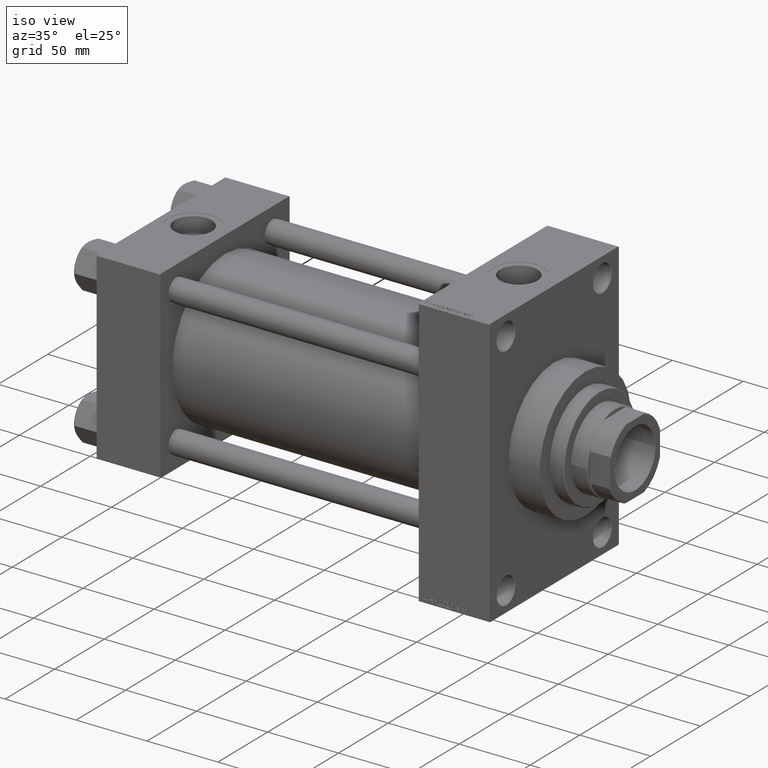
[diagram: clean part render]
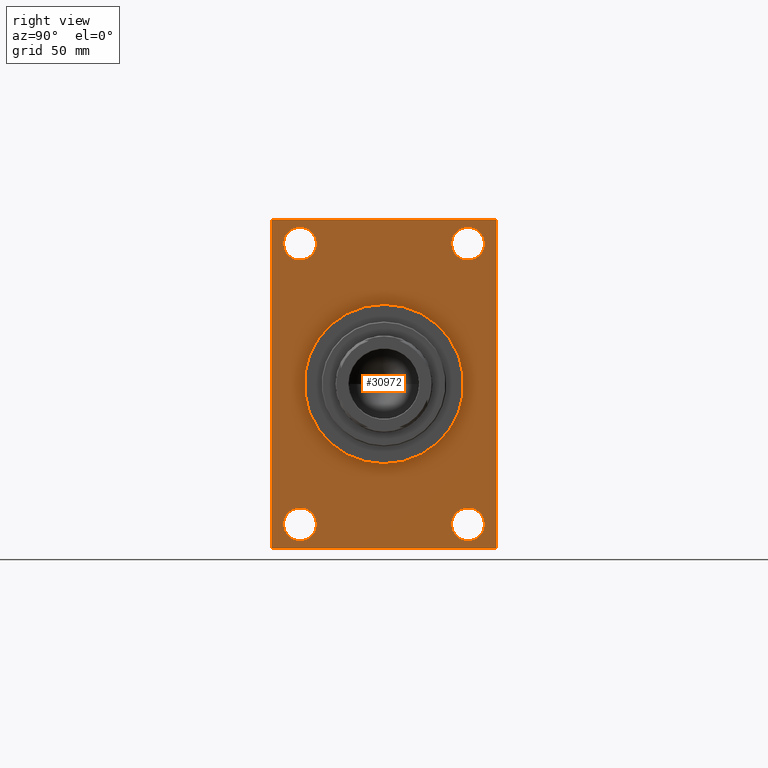
[diagram: tour spotlight — one face highlighted and labeled with its STEP entity id]
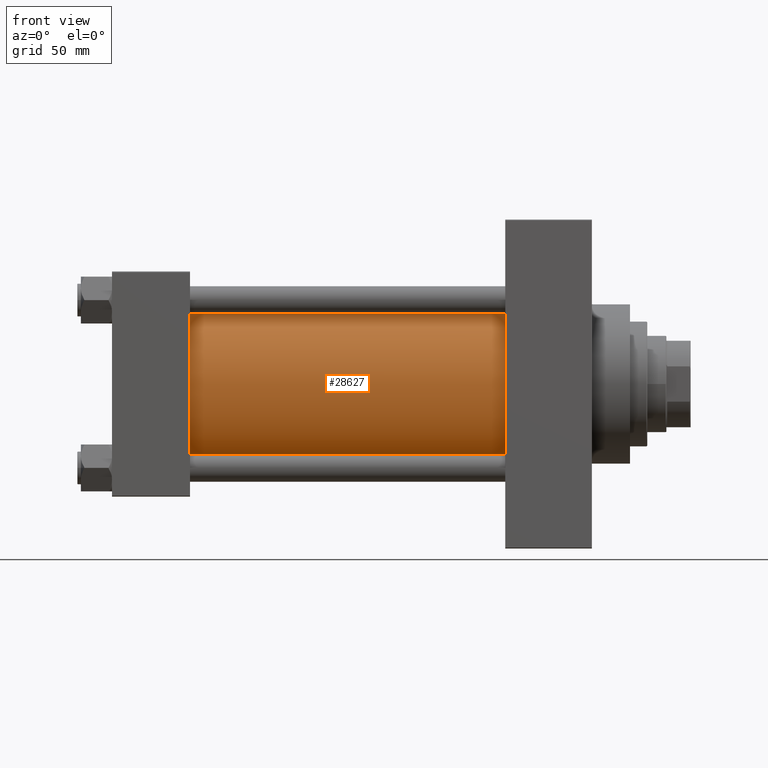
[diagram: tour spotlight — one face highlighted and labeled with its STEP entity id]
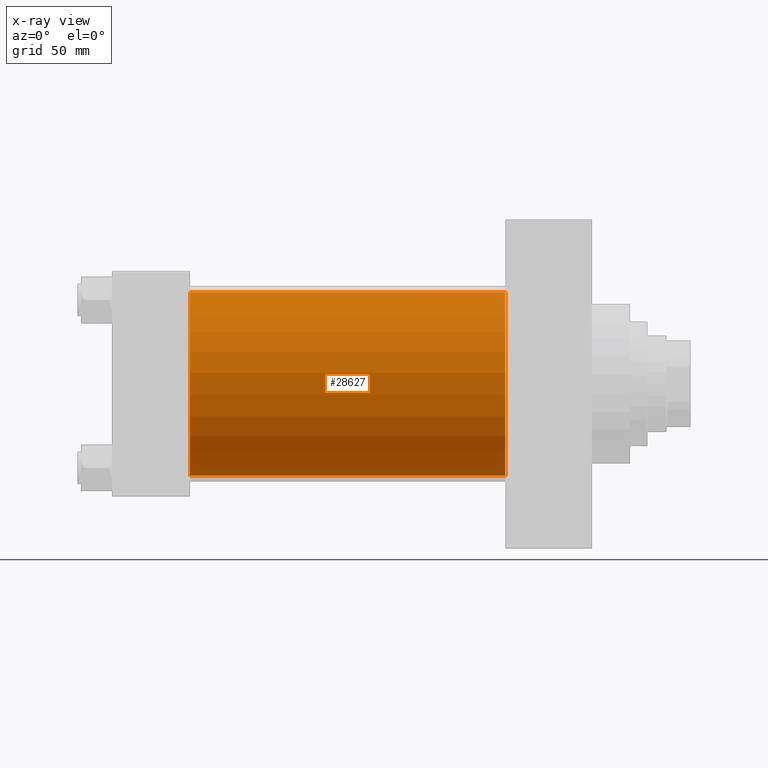
[diagram: x-ray of the same camera — body ghosted, this tour face saturated]
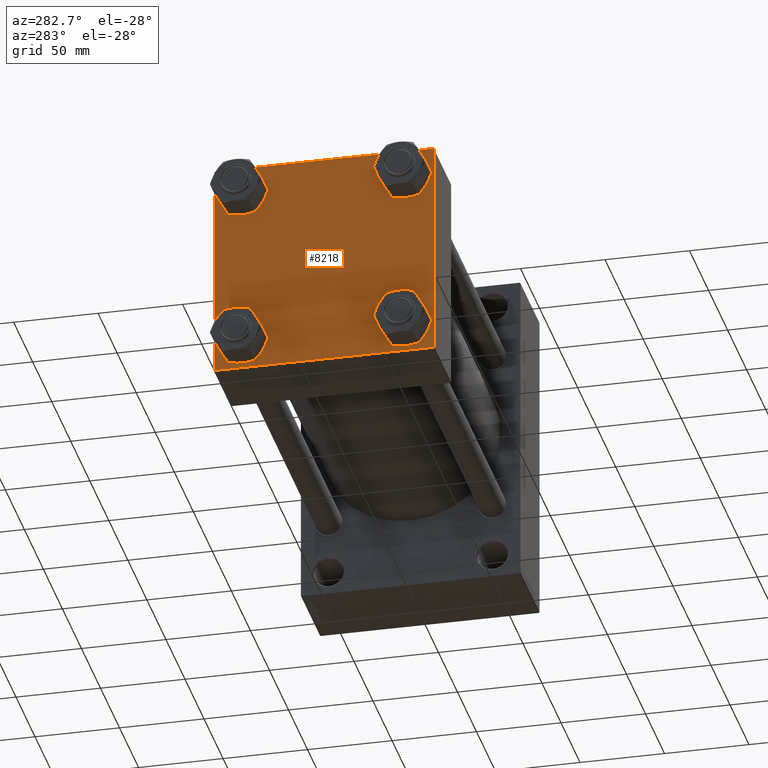
[diagram: tour spotlight — one face highlighted and labeled with its STEP entity id]
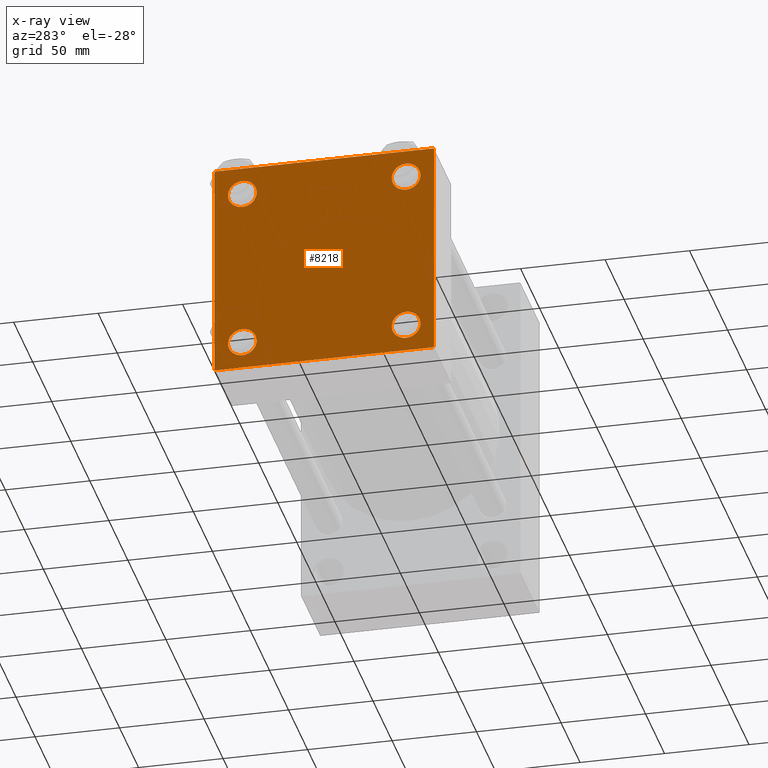
[diagram: x-ray of the same camera — body ghosted, this tour face saturated]
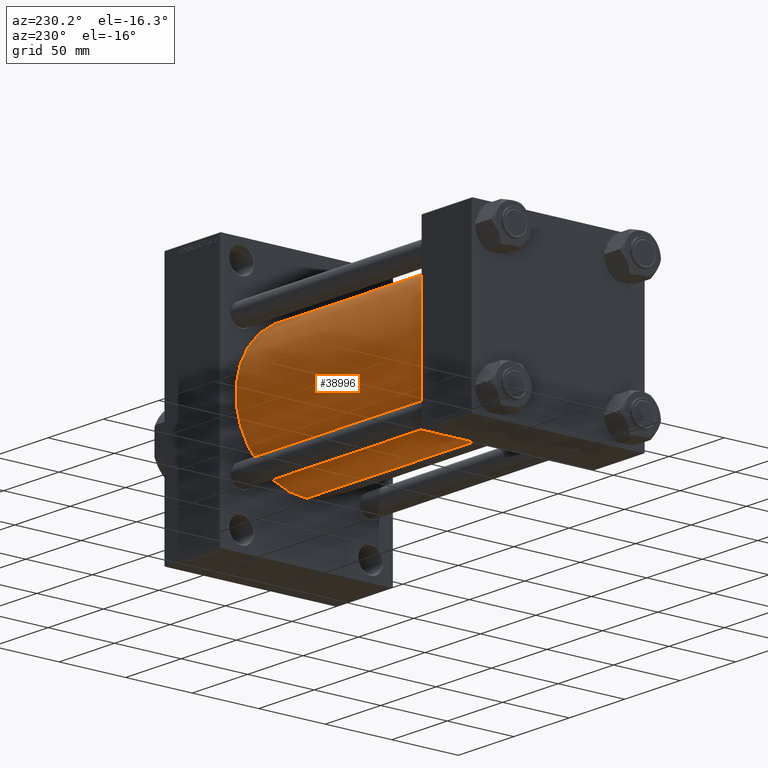
[diagram: tour spotlight — one face highlighted and labeled with its STEP entity id]
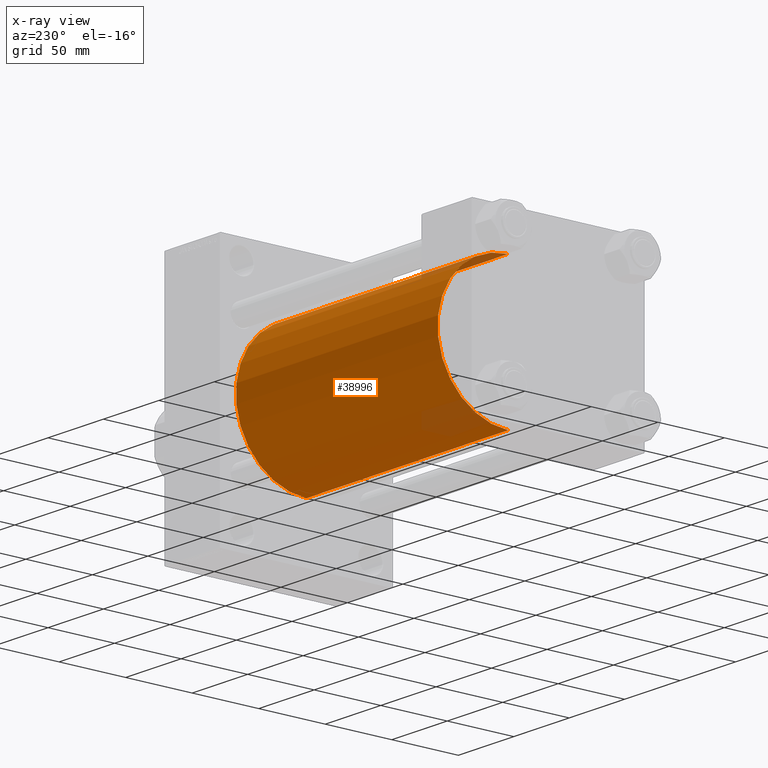
[diagram: x-ray of the same camera — body ghosted, this tour face saturated]
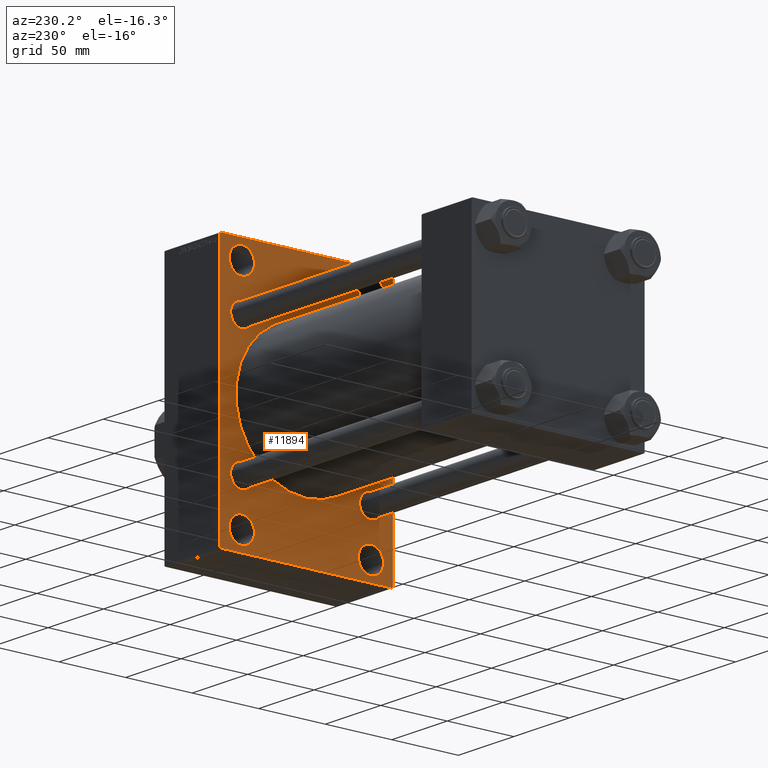
[diagram: tour spotlight — one face highlighted and labeled with its STEP entity id]
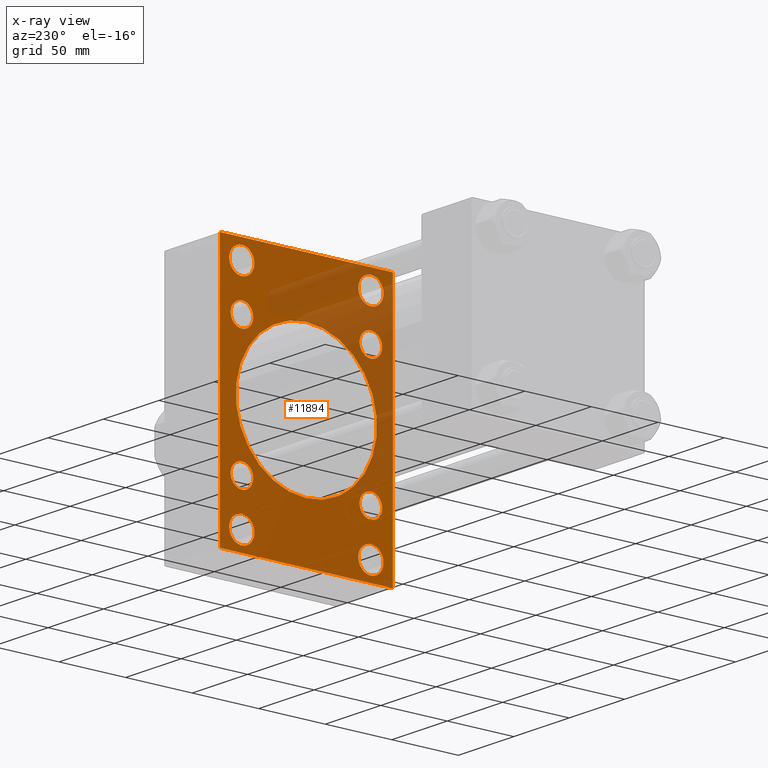
[diagram: x-ray of the same camera — body ghosted, this tour face saturated]
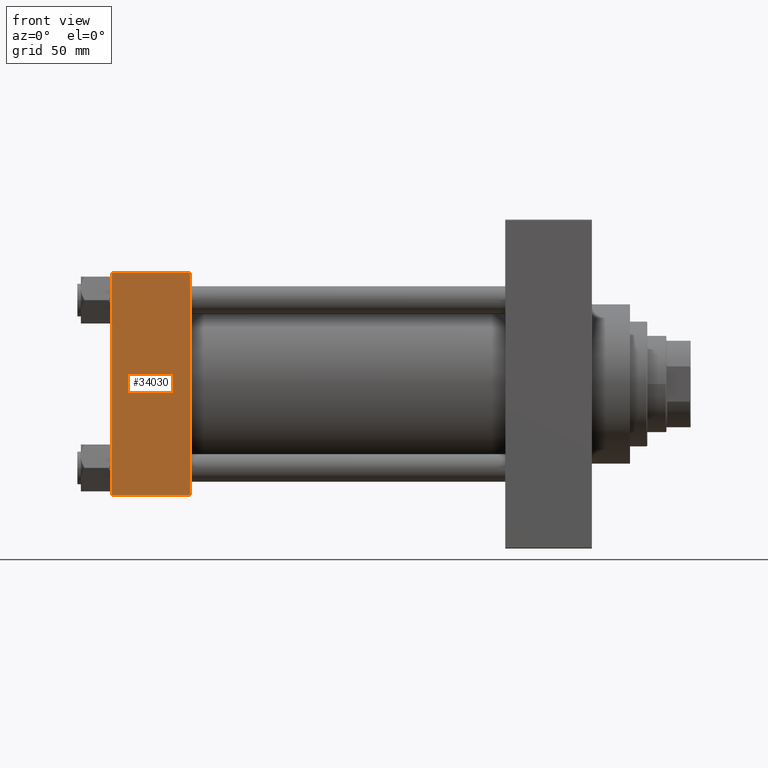
[diagram: tour spotlight — one face highlighted and labeled with its STEP entity id]
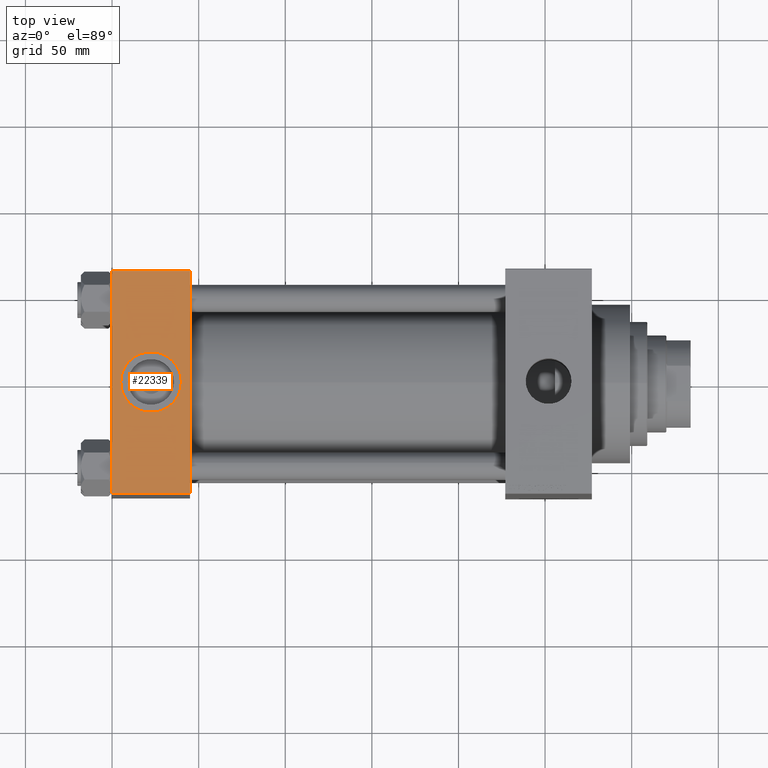
[diagram: tour spotlight — one face highlighted and labeled with its STEP entity id]
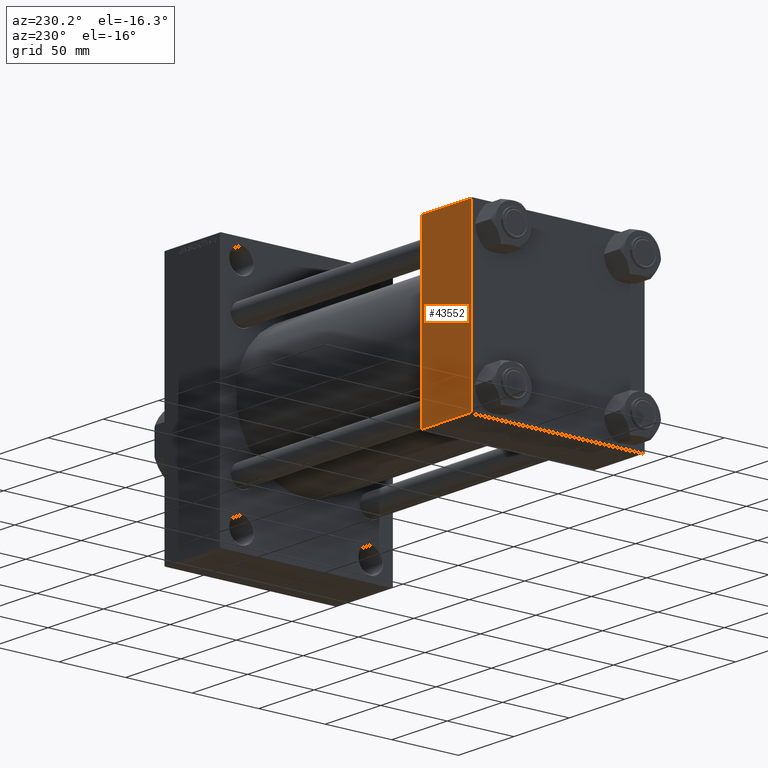
[diagram: tour spotlight — one face highlighted and labeled with its STEP entity id]
A machine part: a face-by-face anatomy tour. The part has 1151 B-rep faces; the first image is the clean iso view, then the 8 largest visible faces are spotlighted one at a time (largest first), each with its STEP entity span.

Face 1 — right view, entity #30972. In plain terms, the highlighted planar face has unit normal (-1, 0, 0).
Definition (entity closure, byte-faithful):
#55 = CIRCLE ( 'NONE', #9327, 9.499999999999896971 ) ;
#68 = VERTEX_POINT ( 'NONE', #6827 ) ;
#98 = VERTEX_POINT ( 'NONE', #14079 ) ;
#377 = CARTESIAN_POINT ( 'NONE',  ( 276.9999999999999432, 5.633375276077824704E-15, -46.00000000000000000 ) ) ;
#673 = DIRECTION ( 'NONE',  ( -1.000000000000000000, 0.000000000000000000, -0.000000000000000000 ) ) ;
#762 = VECTOR ( 'NONE', #2594, 1000.000000000000114 ) ;
#774 = DIRECTION ( 'NONE',  ( 0.000000000000000000, -1.000000000000000000, 0.000000000000000000 ) ) ;
#1146 = FACE_BOUND ( 'NONE', #27618, .T. ) ;
#1575 = EDGE_CURVE ( 'NONE', #6275, #40844, #21697, .T. ) ;
#1829 = DIRECTION ( 'NONE',  ( 0.000000000000000000, 0.000000000000000000, 1.000000000000000000 ) ) ;
#2068 = DIRECTION ( 'NONE',  ( -1.000000000000000000, 0.000000000000000000, -0.000000000000000000 ) ) ;
#2594 = DIRECTION ( 'NONE',  ( 0.000000000000000000, -0.7071067811865474617, 0.7071067811865474617 ) ) ;
#4267 = CARTESIAN_POINT ( 'NONE',  ( 276.9999999999999432, 48.50000000000000711, 90.49999999999990052 ) ) ;
#4622 = ORIENTED_EDGE ( 'NONE', *, *, #35723, .T. ) ;
#4740 = VECTOR ( 'NONE', #35516, 1000.000000000000000 ) ;
#5149 = VERTEX_POINT ( 'NONE', #10436 ) ;
#5502 = CARTESIAN_POINT ( 'NONE',  ( 276.9999999999999432, 64.49999999999997158, 94.99999999999997158 ) ) ;
#5659 = CARTESIAN_POINT ( 'NONE',  ( 276.9999999999999432, 64.99999999999998579, -94.49999999999997158 ) ) ;
#5850 = DIRECTION ( 'NONE',  ( 1.000000000000000000, 0.000000000000000000, 0.000000000000000000 ) ) ;
#6275 = VERTEX_POINT ( 'NONE', #26590 ) ;
#6305 = EDGE_CURVE ( 'NONE', #98, #6636, #30946, .T. ) ;
#6636 = VERTEX_POINT ( 'NONE', #25247 ) ;
#6687 = DIRECTION ( 'NONE',  ( 0.000000000000000000, 0.7071067811865867636, -0.7071067811865081598 ) ) ;
#6827 = CARTESIAN_POINT ( 'NONE',  ( 276.9999999999999432, 48.50000000000000711, 71.50000000000009948 ) ) ;
#6890 = VERTEX_POINT ( 'NONE', #5659 ) ;
#6994 = EDGE_LOOP ( 'NONE', ( #34178, #35293 ) ) ;
#7594 = AXIS2_PLACEMENT_3D ( 'NONE', #16955, #5850, #31676 ) ;
#8891 = DIRECTION ( 'NONE',  ( 0.000000000000000000, 0.000000000000000000, -1.000000000000000000 ) ) ;
#9017 = VERTEX_POINT ( 'NONE', #37315 ) ;
#9327 = AXIS2_PLACEMENT_3D ( 'NONE', #36267, #13601, #39417 ) ;
#9669 = CARTESIAN_POINT ( 'NONE',  ( 276.9999999999999432, 0.000000000000000000, 0.000000000000000000 ) ) ;
#9848 = EDGE_CURVE ( 'NONE', #18673, #5149, #37078, .T. ) ;
#10436 = CARTESIAN_POINT ( 'NONE',  ( 276.9999999999999432, -64.49999999999995737, -95.00000000000002842 ) ) ;
#10492 = ORIENTED_EDGE ( 'NONE', *, *, #20408, .T. ) ;
#10534 = DIRECTION ( 'NONE',  ( -0.000000000000000000, 0.7071067811865965336, 0.7071067811864985009 ) ) ;
#11042 = CARTESIAN_POINT ( 'NONE',  ( 276.9999999999999432, -65.00000000000001421, 94.49999999999991473 ) ) ;
#11053 = CIRCLE ( 'NONE', #13371, 46.00000000000000000 ) ;
#11224 = EDGE_CURVE ( 'NONE', #47557, #43795, #36029, .T. ) ;
#11405 = DIRECTION ( 'NONE',  ( 0.000000000000000000, 0.000000000000000000, 1.000000000000000000 ) ) ;
#11620 = EDGE_CURVE ( 'NONE', #43795, #47557, #22210, .T. ) ;
#11732 = EDGE_CURVE ( 'NONE', #14982, #18673, #41716, .T. ) ;
#12025 = DIRECTION ( 'NONE',  ( 0.000000000000000000, 0.000000000000000000, 1.000000000000000000 ) ) ;
#12038 = ORIENTED_EDGE ( 'NONE', *, *, #41573, .F. ) ;
#12086 = VERTEX_POINT ( 'NONE', #46882 ) ;
#12490 = EDGE_CURVE ( 'NONE', #68, #23356, #24514, .T. ) ;
#12514 = ORIENTED_EDGE ( 'NONE', *, *, #1575, .T. ) ;
#12530 = CARTESIAN_POINT ( 'NONE',  ( 276.9999999999999432, -65.00000000000001421, 94.99999999999997158 ) ) ;
#12693 = CARTESIAN_POINT ( 'NONE',  ( 276.9999999999999432, 48.50000000000000711, 81.00000000000000000 ) ) ;
#12959 = CARTESIAN_POINT ( 'NONE',  ( 276.9999999999999432, -65.00000000000001421, 94.49999999999991473 ) ) ;
#13206 = LINE ( 'NONE', #28383, #33280 ) ;
#13371 = AXIS2_PLACEMENT_3D ( 'NONE', #9669, #42974, #28251 ) ;
#13601 = DIRECTION ( 'NONE',  ( -1.000000000000000000, 0.000000000000000000, -0.000000000000000000 ) ) ;
#14079 = CARTESIAN_POINT ( 'NONE',  ( 276.9999999999999432, 64.49999999999997158, 94.99999999999997158 ) ) ;
#14721 = CARTESIAN_POINT ( 'NONE',  ( 276.9999999999999432, 48.50000000000000711, -81.00000000000001421 ) ) ;
#14982 = VERTEX_POINT ( 'NONE', #12959 ) ;
#15470 = VERTEX_POINT ( 'NONE', #39841 ) ;
#15643 = FACE_BOUND ( 'NONE', #38663, .T. ) ;
#15645 = DIRECTION ( 'NONE',  ( -1.000000000000000000, 0.000000000000000000, -0.000000000000000000 ) ) ;
#15880 = FACE_OUTER_BOUND ( 'NONE', #33768, .T. ) ;
#16955 = CARTESIAN_POINT ( 'NONE',  ( 276.9999999999999432, 0.000000000000000000, 0.000000000000000000 ) ) ;
#18673 = VERTEX_POINT ( 'NONE', #42340 ) ;
#18802 = AXIS2_PLACEMENT_3D ( 'NONE', #25351, #39837, #21746 ) ;
#19028 = PLANE ( 'NONE',  #20744 ) ;
#19281 = ORIENTED_EDGE ( 'NONE', *, *, #11620, .T. ) ;
#19318 = EDGE_LOOP ( 'NONE', ( #23166, #4622 ) ) ;
#19352 = ORIENTED_EDGE ( 'NONE', *, *, #41117, .T. ) ;
#19527 = DIRECTION ( 'NONE',  ( -1.000000000000000000, 0.000000000000000000, -0.000000000000000000 ) ) ;
#20033 = VERTEX_POINT ( 'NONE', #27026 ) ;
#20136 = CIRCLE ( 'NONE', #37842, 9.499999999999896971 ) ;
#20408 = EDGE_CURVE ( 'NONE', #33162, #98, #34220, .T. ) ;
#20744 = AXIS2_PLACEMENT_3D ( 'NONE', #33737, #673, #26962 ) ;
#20798 = CARTESIAN_POINT ( 'NONE',  ( 276.9999999999999432, 64.99999999999997158, 94.99999999999997158 ) ) ;
#21697 = CIRCLE ( 'NONE', #22475, 9.499999999999896971 ) ;
#21746 = DIRECTION ( 'NONE',  ( 0.000000000000000000, 0.000000000000000000, 1.000000000000000000 ) ) ;
#22210 = CIRCLE ( 'NONE', #29896, 9.499999999999896971 ) ;
#22475 = AXIS2_PLACEMENT_3D ( 'NONE', #34218, #15645, #12025 ) ;
#22507 = CARTESIAN_POINT ( 'NONE',  ( 276.9999999999999432, 48.50000000000000711, -81.00000000000001421 ) ) ;
#23166 = ORIENTED_EDGE ( 'NONE', *, *, #12490, .T. ) ;
#23259 = EDGE_CURVE ( 'NONE', #12086, #20033, #20136, .T. ) ;
#23356 = VERTEX_POINT ( 'NONE', #4267 ) ;
#23724 = AXIS2_PLACEMENT_3D ( 'NONE', #12693, #2068, #1829 ) ;
#24514 = CIRCLE ( 'NONE', #23724, 9.499999999999896971 ) ;
#24620 = EDGE_LOOP ( 'NONE', ( #45113, #12514 ) ) ;
#24682 = DIRECTION ( 'NONE',  ( -1.000000000000000000, 0.000000000000000000, -0.000000000000000000 ) ) ;
#24856 = ORIENTED_EDGE ( 'NONE', *, *, #9848, .T. ) ;
#25032 = CARTESIAN_POINT ( 'NONE',  ( 276.9999999999999432, -64.49999999999995737, -95.00000000000002842 ) ) ;
#25247 = CARTESIAN_POINT ( 'NONE',  ( 276.9999999999999432, -64.50000000000002842, 94.99999999999997158 ) ) ;
#25351 = CARTESIAN_POINT ( 'NONE',  ( 276.9999999999999432, -48.49999999999999289, -81.00000000000001421 ) ) ;
#26507 = ORIENTED_EDGE ( 'NONE', *, *, #6305, .T. ) ;
#26590 = CARTESIAN_POINT ( 'NONE',  ( 276.9999999999999432, -48.49999999999999289, -71.50000000000011369 ) ) ;
#26962 = DIRECTION ( 'NONE',  ( -0.000000000000000000, 0.000000000000000000, 1.000000000000000000 ) ) ;
#27026 = CARTESIAN_POINT ( 'NONE',  ( 276.9999999999999432, 48.50000000000000711, -90.49999999999991473 ) ) ;
#27203 = FACE_BOUND ( 'NONE', #6994, .T. ) ;
#27618 = EDGE_LOOP ( 'NONE', ( #46864, #19281 ) ) ;
#28014 = ORIENTED_EDGE ( 'NONE', *, *, #23259, .T. ) ;
#28251 = DIRECTION ( 'NONE',  ( 0.000000000000000000, 0.000000000000000000, -1.000000000000000000 ) ) ;
#28383 = CARTESIAN_POINT ( 'NONE',  ( 276.9999999999999432, 64.99999999999998579, -94.49999999999997158 ) ) ;
#29387 = LINE ( 'NONE', #11042, #38064 ) ;
#29623 = CARTESIAN_POINT ( 'NONE',  ( 276.9999999999999432, 64.99999999999998579, -95.00000000000001421 ) ) ;
#29896 = AXIS2_PLACEMENT_3D ( 'NONE', #37626, #19527, #41007 ) ;
#30308 = VECTOR ( 'NONE', #32786, 1000.000000000000000 ) ;
#30365 = FACE_BOUND ( 'NONE', #19318, .T. ) ;
#30691 = EDGE_CURVE ( 'NONE', #9017, #38927, #42301, .T. ) ;
#30699 = ORIENTED_EDGE ( 'NONE', *, *, #37760, .T. ) ;
#30946 = LINE ( 'NONE', #34796, #40509 ) ;
#30972 = ADVANCED_FACE ( 'NONE', ( #1146, #38565, #15643, #30365, #27203, #15880 ), #19028, .F. ) ;
#31676 = DIRECTION ( 'NONE',  ( 0.000000000000000000, 0.000000000000000000, -1.000000000000000000 ) ) ;
#32592 = CIRCLE ( 'NONE', #18802, 9.499999999999896971 ) ;
#32786 = DIRECTION ( 'NONE',  ( 0.000000000000000000, -1.000000000000000000, -1.067522139062650425E-16 ) ) ;
#33162 = VERTEX_POINT ( 'NONE', #46394 ) ;
#33247 = LINE ( 'NONE', #29623, #30308 ) ;
#33280 = VECTOR ( 'NONE', #10534, 1000.000000000000114 ) ;
#33737 = CARTESIAN_POINT ( 'NONE',  ( 276.9999999999999432, 0.000000000000000000, 0.000000000000000000 ) ) ;
#33768 = EDGE_LOOP ( 'NONE', ( #36980, #24856, #12038, #30699, #34235, #10492, #26507, #36930 ) ) ;
#34178 = ORIENTED_EDGE ( 'NONE', *, *, #30691, .F. ) ;
#34218 = CARTESIAN_POINT ( 'NONE',  ( 276.9999999999999432, -48.49999999999999289, -81.00000000000001421 ) ) ;
#34220 = LINE ( 'NONE', #5502, #762 ) ;
#34235 = ORIENTED_EDGE ( 'NONE', *, *, #37177, .F. ) ;
#34796 = CARTESIAN_POINT ( 'NONE',  ( 276.9999999999999432, 64.99999999999997158, 94.99999999999997158 ) ) ;
#35293 = ORIENTED_EDGE ( 'NONE', *, *, #41043, .F. ) ;
#35516 = DIRECTION ( 'NONE',  ( 0.000000000000000000, 7.304098846218135653E-17, -1.000000000000000000 ) ) ;
#35552 = CARTESIAN_POINT ( 'NONE',  ( 276.9999999999999432, -48.50000000000000000, 81.00000000000000000 ) ) ;
#35723 = EDGE_CURVE ( 'NONE', #23356, #68, #55, .T. ) ;
#36029 = CIRCLE ( 'NONE', #42191, 9.499999999999896971 ) ;
#36267 = CARTESIAN_POINT ( 'NONE',  ( 276.9999999999999432, 48.50000000000000711, 81.00000000000000000 ) ) ;
#36578 = CARTESIAN_POINT ( 'NONE',  ( 276.9999999999999432, -48.50000000000000000, 71.50000000000009948 ) ) ;
#36930 = ORIENTED_EDGE ( 'NONE', *, *, #41599, .T. ) ;
#36980 = ORIENTED_EDGE ( 'NONE', *, *, #11732, .T. ) ;
#36993 = DIRECTION ( 'NONE',  ( -1.000000000000000000, 0.000000000000000000, -0.000000000000000000 ) ) ;
#37078 = LINE ( 'NONE', #25032, #46029 ) ;
#37177 = EDGE_CURVE ( 'NONE', #33162, #6890, #40082, .T. ) ;
#37315 = CARTESIAN_POINT ( 'NONE',  ( 276.9999999999999432, 0.000000000000000000, 46.00000000000000000 ) ) ;
#37626 = CARTESIAN_POINT ( 'NONE',  ( 276.9999999999999432, -48.50000000000000000, 81.00000000000000000 ) ) ;
#37760 = EDGE_CURVE ( 'NONE', #15470, #6890, #13206, .T. ) ;
#37842 = AXIS2_PLACEMENT_3D ( 'NONE', #22507, #36993, #11405 ) ;
#38064 = VECTOR ( 'NONE', #40491, 1000.000000000000114 ) ;
#38565 = FACE_BOUND ( 'NONE', #24620, .T. ) ;
#38663 = EDGE_LOOP ( 'NONE', ( #19352, #28014 ) ) ;
#38927 = VERTEX_POINT ( 'NONE', #377 ) ;
#39414 = DIRECTION ( 'NONE',  ( 0.000000000000000000, 0.000000000000000000, 1.000000000000000000 ) ) ;
#39417 = DIRECTION ( 'NONE',  ( 0.000000000000000000, 0.000000000000000000, 1.000000000000000000 ) ) ;
#39837 = DIRECTION ( 'NONE',  ( -1.000000000000000000, 0.000000000000000000, -0.000000000000000000 ) ) ;
#39841 = CARTESIAN_POINT ( 'NONE',  ( 276.9999999999999432, 64.49999999999987210, -95.00000000000001421 ) ) ;
#40082 = LINE ( 'NONE', #20798, #4740 ) ;
#40312 = DIRECTION ( 'NONE',  ( 0.000000000000000000, 0.000000000000000000, 1.000000000000000000 ) ) ;
#40339 = CIRCLE ( 'NONE', #46519, 9.499999999999896971 ) ;
#40491 = DIRECTION ( 'NONE',  ( -0.000000000000000000, -0.7071067811864985009, -0.7071067811865965336 ) ) ;
#40509 = VECTOR ( 'NONE', #774, 1000.000000000000000 ) ;
#40844 = VERTEX_POINT ( 'NONE', #42858 ) ;
#41007 = DIRECTION ( 'NONE',  ( 0.000000000000000000, 0.000000000000000000, 1.000000000000000000 ) ) ;
#41043 = EDGE_CURVE ( 'NONE', #38927, #9017, #11053, .T. ) ;
#41117 = EDGE_CURVE ( 'NONE', #20033, #12086, #40339, .T. ) ;
#41452 = VECTOR ( 'NONE', #8891, 1000.000000000000000 ) ;
#41573 = EDGE_CURVE ( 'NONE', #15470, #5149, #33247, .T. ) ;
#41599 = EDGE_CURVE ( 'NONE', #6636, #14982, #29387, .T. ) ;
#41716 = LINE ( 'NONE', #12530, #41452 ) ;
#42191 = AXIS2_PLACEMENT_3D ( 'NONE', #35552, #24682, #39414 ) ;
#42301 = CIRCLE ( 'NONE', #7594, 46.00000000000000000 ) ;
#42340 = CARTESIAN_POINT ( 'NONE',  ( 276.9999999999999432, -65.00000000000001421, -94.50000000000002842 ) ) ;
#42858 = CARTESIAN_POINT ( 'NONE',  ( 276.9999999999999432, -48.49999999999999289, -90.49999999999991473 ) ) ;
#42974 = DIRECTION ( 'NONE',  ( 1.000000000000000000, 0.000000000000000000, 0.000000000000000000 ) ) ;
#43430 = EDGE_CURVE ( 'NONE', #40844, #6275, #32592, .T. ) ;
#43699 = DIRECTION ( 'NONE',  ( -1.000000000000000000, 0.000000000000000000, -0.000000000000000000 ) ) ;
#43795 = VERTEX_POINT ( 'NONE', #46800 ) ;
#45113 = ORIENTED_EDGE ( 'NONE', *, *, #43430, .T. ) ;
#46029 = VECTOR ( 'NONE', #6687, 1000.000000000000000 ) ;
#46394 = CARTESIAN_POINT ( 'NONE',  ( 276.9999999999999432, 64.99999999999997158, 94.49999999999997158 ) ) ;
#46519 = AXIS2_PLACEMENT_3D ( 'NONE', #14721, #43699, #40312 ) ;
#46800 = CARTESIAN_POINT ( 'NONE',  ( 276.9999999999999432, -48.50000000000000000, 90.49999999999990052 ) ) ;
#46864 = ORIENTED_EDGE ( 'NONE', *, *, #11224, .T. ) ;
#46882 = CARTESIAN_POINT ( 'NONE',  ( 276.9999999999999432, 48.50000000000000711, -71.50000000000011369 ) ) ;
#47557 = VERTEX_POINT ( 'NONE', #36578 ) ;

Face 2 — front view, entity #28627. An x-ray twin of the same camera follows (body ghosted, this face saturated) — the face is partly hidden behind the body. In plain terms, the highlighted cylindrical surface (partial cylindrical patch) has radius 53 mm, axis along (-1, -0, -0).
Definition (entity closure, byte-faithful):
#248 = CARTESIAN_POINT ( 'NONE',  ( 226.9999999999999716, -2.602085213965210642E-15, 0.000000000000000000 ) ) ;
#340 = EDGE_CURVE ( 'NONE', #23618, #27884, #4843, .T. ) ;
#3494 = CARTESIAN_POINT ( 'NONE',  ( 44.99999999999998579, -2.602085213965210642E-15, 53.00000000000000711 ) ) ;
#3741 = AXIS2_PLACEMENT_3D ( 'NONE', #5152, #9241, #23732 ) ;
#4843 = CIRCLE ( 'NONE', #22580, 53.00000000000000711 ) ;
#5152 = CARTESIAN_POINT ( 'NONE',  ( 226.9999999999999716, -2.602085213965210642E-15, 0.000000000000000000 ) ) ;
#7718 = CYLINDRICAL_SURFACE ( 'NONE', #24919, 53.00000000000000711 ) ;
#8335 = CIRCLE ( 'NONE', #3741, 53.00000000000000711 ) ;
#9241 = DIRECTION ( 'NONE',  ( 1.000000000000000000, 0.000000000000000000, 0.000000000000000000 ) ) ;
#9831 = EDGE_LOOP ( 'NONE', ( #10451, #18229, #39988, #46123 ) ) ;
#10451 = ORIENTED_EDGE ( 'NONE', *, *, #16196, .F. ) ;
#11566 = EDGE_CURVE ( 'NONE', #30069, #23618, #46839, .T. ) ;
#12724 = EDGE_CURVE ( 'NONE', #30069, #31475, #8335, .T. ) ;
#13201 = CARTESIAN_POINT ( 'NONE',  ( 226.9999999999999716, 3.888542821515762466E-15, -53.00000000000000711 ) ) ;
#14267 = DIRECTION ( 'NONE',  ( -1.000000000000000000, -0.000000000000000000, -0.000000000000000000 ) ) ;
#16196 = EDGE_CURVE ( 'NONE', #31475, #27884, #16587, .T. ) ;
#16587 = LINE ( 'NONE', #13201, #23893 ) ;
#16833 = CARTESIAN_POINT ( 'NONE',  ( 226.9999999999999716, -2.602085213965210642E-15, 53.00000000000000711 ) ) ;
#18229 = ORIENTED_EDGE ( 'NONE', *, *, #12724, .F. ) ;
#22580 = AXIS2_PLACEMENT_3D ( 'NONE', #22687, #44653, #41259 ) ;
#22687 = CARTESIAN_POINT ( 'NONE',  ( 44.99999999999998579, -2.602085213965210642E-15, 0.000000000000000000 ) ) ;
#23618 = VERTEX_POINT ( 'NONE', #3494 ) ;
#23732 = DIRECTION ( 'NONE',  ( 0.000000000000000000, 0.000000000000000000, -1.000000000000000000 ) ) ;
#23893 = VECTOR ( 'NONE', #31541, 1000.000000000000000 ) ;
#24919 = AXIS2_PLACEMENT_3D ( 'NONE', #248, #14267, #40794 ) ;
#27884 = VERTEX_POINT ( 'NONE', #36254 ) ;
#28365 = VECTOR ( 'NONE', #29917, 1000.000000000000000 ) ;
#28627 = ADVANCED_FACE ( 'NONE', ( #40324 ), #7718, .T. ) ;
#29917 = DIRECTION ( 'NONE',  ( -1.000000000000000000, -0.000000000000000000, -0.000000000000000000 ) ) ;
#30069 = VERTEX_POINT ( 'NONE', #16833 ) ;
#31475 = VERTEX_POINT ( 'NONE', #32133 ) ;
#31541 = DIRECTION ( 'NONE',  ( -1.000000000000000000, -0.000000000000000000, -0.000000000000000000 ) ) ;
#32133 = CARTESIAN_POINT ( 'NONE',  ( 226.9999999999999716, 3.888542821515762466E-15, -53.00000000000000711 ) ) ;
#36254 = CARTESIAN_POINT ( 'NONE',  ( 44.99999999999998579, 3.888542821515762466E-15, -53.00000000000000711 ) ) ;
#39988 = ORIENTED_EDGE ( 'NONE', *, *, #11566, .T. ) ;
#40324 = FACE_OUTER_BOUND ( 'NONE', #9831, .T. ) ;
#40794 = DIRECTION ( 'NONE',  ( 0.000000000000000000, 0.000000000000000000, 1.000000000000000000 ) ) ;
#41259 = DIRECTION ( 'NONE',  ( 0.000000000000000000, 0.000000000000000000, 1.000000000000000000 ) ) ;
#41474 = CARTESIAN_POINT ( 'NONE',  ( 226.9999999999999716, -2.602085213965210642E-15, 53.00000000000000711 ) ) ;
#44653 = DIRECTION ( 'NONE',  ( 1.000000000000000000, -0.000000000000000000, 0.000000000000000000 ) ) ;
#46123 = ORIENTED_EDGE ( 'NONE', *, *, #340, .T. ) ;
#46839 = LINE ( 'NONE', #41474, #28365 ) ;

Face 3 — auxiliary view, entity #8218. An x-ray twin of the same camera follows (body ghosted, this face saturated) — the face is partly hidden behind the body. In plain terms, the highlighted planar face has unit normal (-1, 0, 0).
Definition (entity closure, byte-faithful):
#210 = CARTESIAN_POINT ( 'NONE',  ( 0.000000000000000000, 48.45000000000000995, 48.45000000000001705 ) ) ;
#915 = EDGE_CURVE ( 'NONE', #7332, #36193, #24217, .T. ) ;
#1299 = VERTEX_POINT ( 'NONE', #20638 ) ;
#1534 = ORIENTED_EDGE ( 'NONE', *, *, #3401, .T. ) ;
#1765 = CARTESIAN_POINT ( 'NONE',  ( 0.000000000000000000, 65.00000000000000000, 65.00000000000001421 ) ) ;
#2251 = VERTEX_POINT ( 'NONE', #30489 ) ;
#2583 = CARTESIAN_POINT ( 'NONE',  ( 0.000000000000000000, 48.45000000000000995, 48.45000000000001705 ) ) ;
#2737 = DIRECTION ( 'NONE',  ( 0.000000000000000000, 0.000000000000000000, -1.000000000000000000 ) ) ;
#3044 = CARTESIAN_POINT ( 'NONE',  ( 0.000000000000000000, -64.75000000000176215, -64.74999999999816680 ) ) ;
#3162 = DIRECTION ( 'NONE',  ( 1.000000000000000000, -0.000000000000000000, 0.000000000000000000 ) ) ;
#3232 = EDGE_CURVE ( 'NONE', #25987, #1299, #9004, .T. ) ;
#3401 = EDGE_CURVE ( 'NONE', #39181, #46499, #28205, .T. ) ;
#3920 = DIRECTION ( 'NONE',  ( 0.000000000000000000, 0.000000000000000000, 1.000000000000000000 ) ) ;
#3922 = VERTEX_POINT ( 'NONE', #16544 ) ;
#4385 = CARTESIAN_POINT ( 'NONE',  ( 0.000000000000000000, 48.45000000000000995, -48.45000000000001705 ) ) ;
#4492 = CIRCLE ( 'NONE', #37641, 8.500000000000007105 ) ;
#4742 = VERTEX_POINT ( 'NONE', #45576 ) ;
#4829 = CARTESIAN_POINT ( 'NONE',  ( 0.000000000000000000, 64.49999999999997158, 65.00000000000001421 ) ) ;
#4919 = CARTESIAN_POINT ( 'NONE',  ( 0.000000000000000000, 64.74999999999997158, -64.74999999999997158 ) ) ;
#5252 = DIRECTION ( 'NONE',  ( 0.000000000000000000, 0.000000000000000000, 1.000000000000000000 ) ) ;
#5281 = EDGE_CURVE ( 'NONE', #25987, #31519, #27277, .T. ) ;
#5385 = DIRECTION ( 'NONE',  ( 0.000000000000000000, -1.000000000000000000, -1.067522139062650425E-16 ) ) ;
#5673 = VECTOR ( 'NONE', #28925, 1000.000000000000000 ) ;
#5878 = CARTESIAN_POINT ( 'NONE',  ( 0.000000000000000000, -48.44999999999999574, -48.45000000000003126 ) ) ;
#6365 = ORIENTED_EDGE ( 'NONE', *, *, #37176, .T. ) ;
#6431 = CARTESIAN_POINT ( 'NONE',  ( 0.000000000000000000, 48.45000000000000995, 39.95000000000000284 ) ) ;
#6854 = CARTESIAN_POINT ( 'NONE',  ( 0.000000000000000000, 48.45000000000000995, -56.95000000000002416 ) ) ;
#7189 = VECTOR ( 'NONE', #41834, 1000.000000000000114 ) ;
#7332 = VERTEX_POINT ( 'NONE', #35761 ) ;
#7553 = CARTESIAN_POINT ( 'NONE',  ( 0.000000000000000000, -48.44999999999999574, 48.45000000000003126 ) ) ;
#7734 = FACE_BOUND ( 'NONE', #8233, .T. ) ;
#8215 = DIRECTION ( 'NONE',  ( 0.000000000000000000, 0.7071067811865474617, -0.7071067811865474617 ) ) ;
#8218 = ADVANCED_FACE ( 'NONE', ( #7734, #44672, #44906, #33333, #14991 ), #26315, .T. ) ;
#8233 = EDGE_LOOP ( 'NONE', ( #11447, #8458 ) ) ;
#8314 = ORIENTED_EDGE ( 'NONE', *, *, #26312, .T. ) ;
#8458 = ORIENTED_EDGE ( 'NONE', *, *, #30477, .T. ) ;
#9004 = LINE ( 'NONE', #1765, #45927 ) ;
#9578 = DIRECTION ( 'NONE',  ( 0.000000000000000000, 0.000000000000000000, 1.000000000000000000 ) ) ;
#9623 = EDGE_CURVE ( 'NONE', #4742, #37725, #19835, .T. ) ;
#10419 = DIRECTION ( 'NONE',  ( 1.000000000000000000, -0.000000000000000000, 0.000000000000000000 ) ) ;
#10456 = LINE ( 'NONE', #25171, #36260 ) ;
#10528 = DIRECTION ( 'NONE',  ( 0.000000000000000000, -0.7071067811865279218, 0.7071067811865671127 ) ) ;
#10888 = CARTESIAN_POINT ( 'NONE',  ( 0.000000000000000000, 0.000000000000000000, 0.000000000000000000 ) ) ;
#11140 = DIRECTION ( 'NONE',  ( 1.000000000000000000, -0.000000000000000000, 0.000000000000000000 ) ) ;
#11447 = ORIENTED_EDGE ( 'NONE', *, *, #30856, .T. ) ;
#11660 = VERTEX_POINT ( 'NONE', #37155 ) ;
#11786 = VECTOR ( 'NONE', #39859, 1000.000000000000000 ) ;
#12124 = CARTESIAN_POINT ( 'NONE',  ( 0.000000000000000000, -48.44999999999999574, 39.95000000000001705 ) ) ;
#12189 = ORIENTED_EDGE ( 'NONE', *, *, #27091, .F. ) ;
#12483 = CARTESIAN_POINT ( 'NONE',  ( -0.000000000000000000, -64.74999999999819522, 64.75000000000179057 ) ) ;
#13044 = EDGE_CURVE ( 'NONE', #46499, #39181, #30714, .T. ) ;
#13686 = DIRECTION ( 'NONE',  ( 1.000000000000000000, -0.000000000000000000, 0.000000000000000000 ) ) ;
#13688 = EDGE_CURVE ( 'NONE', #24908, #3922, #4492, .T. ) ;
#13782 = CIRCLE ( 'NONE', #23001, 8.500000000000007105 ) ;
#13944 = CARTESIAN_POINT ( 'NONE',  ( 0.000000000000000000, 48.45000000000000995, -39.95000000000000284 ) ) ;
#14697 = DIRECTION ( 'NONE',  ( 1.000000000000000000, -0.000000000000000000, 0.000000000000000000 ) ) ;
#14991 = FACE_OUTER_BOUND ( 'NONE', #25982, .T. ) ;
#15010 = DIRECTION ( 'NONE',  ( 0.000000000000000000, 0.000000000000000000, 1.000000000000000000 ) ) ;
#15464 = DIRECTION ( 'NONE',  ( -0.000000000000000000, 0.000000000000000000, 1.000000000000000000 ) ) ;
#15946 = ORIENTED_EDGE ( 'NONE', *, *, #44800, .T. ) ;
#16180 = ORIENTED_EDGE ( 'NONE', *, *, #43952, .T. ) ;
#16285 = CIRCLE ( 'NONE', #30940, 8.500000000000007105 ) ;
#16355 = EDGE_CURVE ( 'NONE', #11660, #22390, #21399, .T. ) ;
#16544 = CARTESIAN_POINT ( 'NONE',  ( 0.000000000000000000, -48.44999999999999574, -39.95000000000001705 ) ) ;
#17551 = ORIENTED_EDGE ( 'NONE', *, *, #16355, .T. ) ;
#17686 = CARTESIAN_POINT ( 'NONE',  ( 0.000000000000000000, 48.45000000000000995, -48.45000000000001705 ) ) ;
#17984 = VECTOR ( 'NONE', #26709, 1000.000000000000000 ) ;
#17986 = VERTEX_POINT ( 'NONE', #12124 ) ;
#18117 = EDGE_LOOP ( 'NONE', ( #6365, #29960 ) ) ;
#18119 = CARTESIAN_POINT ( 'NONE',  ( 0.000000000000000000, -48.44999999999999574, -56.95000000000003837 ) ) ;
#19835 = CIRCLE ( 'NONE', #33671, 8.500000000000007105 ) ;
#20200 = LINE ( 'NONE', #12483, #17984 ) ;
#20638 = CARTESIAN_POINT ( 'NONE',  ( 0.000000000000000000, -64.49999999999997158, 65.00000000000000000 ) ) ;
#20790 = CARTESIAN_POINT ( 'NONE',  ( 0.000000000000000000, -65.00000000000000000, -64.49999999999991473 ) ) ;
#21399 = LINE ( 'NONE', #3044, #34673 ) ;
#21534 = CIRCLE ( 'NONE', #40030, 8.500000000000007105 ) ;
#21616 = ORIENTED_EDGE ( 'NONE', *, *, #3232, .F. ) ;
#21998 = CARTESIAN_POINT ( 'NONE',  ( 0.000000000000000000, -65.00000000000000000, 65.00000000000000000 ) ) ;
#22099 = EDGE_CURVE ( 'NONE', #31519, #7332, #10456, .T. ) ;
#22390 = VERTEX_POINT ( 'NONE', #20790 ) ;
#22734 = EDGE_LOOP ( 'NONE', ( #30949, #1534 ) ) ;
#22946 = CARTESIAN_POINT ( 'NONE',  ( 0.000000000000000000, 64.74999999999998579, 64.74999999999998579 ) ) ;
#23001 = AXIS2_PLACEMENT_3D ( 'NONE', #7553, #44726, #41334 ) ;
#24217 = LINE ( 'NONE', #4919, #7189 ) ;
#24382 = VERTEX_POINT ( 'NONE', #27473 ) ;
#24437 = ORIENTED_EDGE ( 'NONE', *, *, #9623, .T. ) ;
#24829 = CARTESIAN_POINT ( 'NONE',  ( 0.000000000000000000, 65.00000000000000000, -64.99999999999998579 ) ) ;
#24901 = CARTESIAN_POINT ( 'NONE',  ( 0.000000000000000000, -48.44999999999999574, 48.45000000000003126 ) ) ;
#24908 = VERTEX_POINT ( 'NONE', #18119 ) ;
#25113 = AXIS2_PLACEMENT_3D ( 'NONE', #4385, #11140, #33584 ) ;
#25171 = CARTESIAN_POINT ( 'NONE',  ( 0.000000000000000000, 65.00000000000000000, 65.00000000000001421 ) ) ;
#25601 = AXIS2_PLACEMENT_3D ( 'NONE', #2583, #13686, #9578 ) ;
#25982 = EDGE_LOOP ( 'NONE', ( #30441, #37462, #15946, #17551, #12189, #16180, #21616, #38745 ) ) ;
#25987 = VERTEX_POINT ( 'NONE', #4829 ) ;
#26025 = DIRECTION ( 'NONE',  ( 0.000000000000000000, 0.000000000000000000, 1.000000000000000000 ) ) ;
#26312 = EDGE_CURVE ( 'NONE', #37725, #4742, #27912, .T. ) ;
#26315 = PLANE ( 'NONE',  #40544 ) ;
#26709 = DIRECTION ( 'NONE',  ( -0.000000000000000000, 0.7071067811865672237, 0.7071067811865279218 ) ) ;
#27091 = EDGE_CURVE ( 'NONE', #24382, #22390, #36953, .T. ) ;
#27232 = CARTESIAN_POINT ( 'NONE',  ( 0.000000000000000000, 64.49999999999997158, -64.99999999999998579 ) ) ;
#27277 = LINE ( 'NONE', #22946, #28927 ) ;
#27473 = CARTESIAN_POINT ( 'NONE',  ( 0.000000000000000000, -65.00000000000000000, 64.50000000000000000 ) ) ;
#27912 = CIRCLE ( 'NONE', #25601, 8.500000000000007105 ) ;
#28205 = CIRCLE ( 'NONE', #25113, 8.500000000000007105 ) ;
#28264 = CARTESIAN_POINT ( 'NONE',  ( 0.000000000000000000, -48.44999999999999574, -48.45000000000003126 ) ) ;
#28925 = DIRECTION ( 'NONE',  ( 0.000000000000000000, -1.000000000000000000, -1.067522139062650425E-16 ) ) ;
#28927 = VECTOR ( 'NONE', #8215, 1000.000000000000114 ) ;
#29165 = LINE ( 'NONE', #24829, #5673 ) ;
#29960 = ORIENTED_EDGE ( 'NONE', *, *, #13688, .T. ) ;
#30441 = ORIENTED_EDGE ( 'NONE', *, *, #22099, .T. ) ;
#30477 = EDGE_CURVE ( 'NONE', #17986, #2251, #13782, .T. ) ;
#30489 = CARTESIAN_POINT ( 'NONE',  ( 0.000000000000000000, -48.44999999999999574, 56.95000000000003837 ) ) ;
#30714 = CIRCLE ( 'NONE', #33028, 8.500000000000007105 ) ;
#30856 = EDGE_CURVE ( 'NONE', #2251, #17986, #21534, .T. ) ;
#30940 = AXIS2_PLACEMENT_3D ( 'NONE', #28264, #3162, #35994 ) ;
#30949 = ORIENTED_EDGE ( 'NONE', *, *, #13044, .T. ) ;
#31519 = VERTEX_POINT ( 'NONE', #38907 ) ;
#32163 = DIRECTION ( 'NONE',  ( 1.000000000000000000, -0.000000000000000000, 0.000000000000000000 ) ) ;
#33028 = AXIS2_PLACEMENT_3D ( 'NONE', #17686, #32163, #15010 ) ;
#33333 = FACE_BOUND ( 'NONE', #35998, .T. ) ;
#33584 = DIRECTION ( 'NONE',  ( 0.000000000000000000, 0.000000000000000000, 1.000000000000000000 ) ) ;
#33671 = AXIS2_PLACEMENT_3D ( 'NONE', #210, #14697, #26025 ) ;
#34673 = VECTOR ( 'NONE', #10528, 1000.000000000000000 ) ;
#35315 = DIRECTION ( 'NONE',  ( 1.000000000000000000, -0.000000000000000000, 0.000000000000000000 ) ) ;
#35761 = CARTESIAN_POINT ( 'NONE',  ( 0.000000000000000000, 65.00000000000000000, -64.49999999999995737 ) ) ;
#35994 = DIRECTION ( 'NONE',  ( 0.000000000000000000, 0.000000000000000000, 1.000000000000000000 ) ) ;
#35998 = EDGE_LOOP ( 'NONE', ( #24437, #8314 ) ) ;
#36193 = VERTEX_POINT ( 'NONE', #27232 ) ;
#36260 = VECTOR ( 'NONE', #2737, 1000.000000000000000 ) ;
#36953 = LINE ( 'NONE', #21998, #11786 ) ;
#37155 = CARTESIAN_POINT ( 'NONE',  ( 0.000000000000000000, -64.49999999999994316, -65.00000000000000000 ) ) ;
#37176 = EDGE_CURVE ( 'NONE', #3922, #24908, #16285, .T. ) ;
#37462 = ORIENTED_EDGE ( 'NONE', *, *, #915, .T. ) ;
#37641 = AXIS2_PLACEMENT_3D ( 'NONE', #5878, #35315, #3920 ) ;
#37725 = VERTEX_POINT ( 'NONE', #6431 ) ;
#38745 = ORIENTED_EDGE ( 'NONE', *, *, #5281, .T. ) ;
#38907 = CARTESIAN_POINT ( 'NONE',  ( 0.000000000000000000, 65.00000000000000000, 64.49999999999998579 ) ) ;
#39181 = VERTEX_POINT ( 'NONE', #6854 ) ;
#39859 = DIRECTION ( 'NONE',  ( 0.000000000000000000, 0.000000000000000000, -1.000000000000000000 ) ) ;
#40030 = AXIS2_PLACEMENT_3D ( 'NONE', #24901, #10419, #5252 ) ;
#40544 = AXIS2_PLACEMENT_3D ( 'NONE', #10888, #40577, #15464 ) ;
#40577 = DIRECTION ( 'NONE',  ( -1.000000000000000000, 0.000000000000000000, -0.000000000000000000 ) ) ;
#41334 = DIRECTION ( 'NONE',  ( 0.000000000000000000, 0.000000000000000000, 1.000000000000000000 ) ) ;
#41834 = DIRECTION ( 'NONE',  ( -0.000000000000000000, -0.7071067811865474617, -0.7071067811865474617 ) ) ;
#43952 = EDGE_CURVE ( 'NONE', #24382, #1299, #20200, .T. ) ;
#44672 = FACE_BOUND ( 'NONE', #18117, .T. ) ;
#44726 = DIRECTION ( 'NONE',  ( 1.000000000000000000, -0.000000000000000000, 0.000000000000000000 ) ) ;
#44800 = EDGE_CURVE ( 'NONE', #36193, #11660, #29165, .T. ) ;
#44906 = FACE_BOUND ( 'NONE', #22734, .T. ) ;
#45576 = CARTESIAN_POINT ( 'NONE',  ( 0.000000000000000000, 48.45000000000000995, 56.95000000000002416 ) ) ;
#45927 = VECTOR ( 'NONE', #5385, 1000.000000000000000 ) ;
#46499 = VERTEX_POINT ( 'NONE', #13944 ) ;

Face 4 — auxiliary view, entity #38996. An x-ray twin of the same camera follows (body ghosted, this face saturated) — the face is partly hidden behind the body. In plain terms, the highlighted cylindrical surface (partial cylindrical patch) has radius 53 mm, axis along (-1, -0, -0).
Definition (entity closure, byte-faithful):
#3457 = DIRECTION ( 'NONE',  ( 0.000000000000000000, 0.000000000000000000, -1.000000000000000000 ) ) ;
#3494 = CARTESIAN_POINT ( 'NONE',  ( 44.99999999999998579, -2.602085213965210642E-15, 53.00000000000000711 ) ) ;
#3836 = CARTESIAN_POINT ( 'NONE',  ( 44.99999999999998579, -2.602085213965210642E-15, 0.000000000000000000 ) ) ;
#4605 = AXIS2_PLACEMENT_3D ( 'NONE', #32671, #14321, #3457 ) ;
#8570 = EDGE_CURVE ( 'NONE', #27884, #23618, #8975, .T. ) ;
#8975 = CIRCLE ( 'NONE', #15149, 53.00000000000000711 ) ;
#10605 = DIRECTION ( 'NONE',  ( 0.000000000000000000, 0.000000000000000000, 1.000000000000000000 ) ) ;
#10839 = DIRECTION ( 'NONE',  ( 1.000000000000000000, -0.000000000000000000, 0.000000000000000000 ) ) ;
#11566 = EDGE_CURVE ( 'NONE', #30069, #23618, #46839, .T. ) ;
#11857 = EDGE_LOOP ( 'NONE', ( #15295, #47364, #40232, #39711 ) ) ;
#11956 = DIRECTION ( 'NONE',  ( 0.000000000000000000, 0.000000000000000000, 1.000000000000000000 ) ) ;
#13201 = CARTESIAN_POINT ( 'NONE',  ( 226.9999999999999716, 3.888542821515762466E-15, -53.00000000000000711 ) ) ;
#14321 = DIRECTION ( 'NONE',  ( 1.000000000000000000, 0.000000000000000000, 0.000000000000000000 ) ) ;
#15149 = AXIS2_PLACEMENT_3D ( 'NONE', #3836, #10839, #10605 ) ;
#15295 = ORIENTED_EDGE ( 'NONE', *, *, #32149, .F. ) ;
#16196 = EDGE_CURVE ( 'NONE', #31475, #27884, #16587, .T. ) ;
#16587 = LINE ( 'NONE', #13201, #23893 ) ;
#16833 = CARTESIAN_POINT ( 'NONE',  ( 226.9999999999999716, -2.602085213965210642E-15, 53.00000000000000711 ) ) ;
#19675 = CYLINDRICAL_SURFACE ( 'NONE', #27121, 53.00000000000000711 ) ;
#23618 = VERTEX_POINT ( 'NONE', #3494 ) ;
#23771 = CARTESIAN_POINT ( 'NONE',  ( 226.9999999999999716, -2.602085213965210642E-15, 0.000000000000000000 ) ) ;
#23893 = VECTOR ( 'NONE', #31541, 1000.000000000000000 ) ;
#27121 = AXIS2_PLACEMENT_3D ( 'NONE', #23771, #42351, #11956 ) ;
#27884 = VERTEX_POINT ( 'NONE', #36254 ) ;
#28365 = VECTOR ( 'NONE', #29917, 1000.000000000000000 ) ;
#29917 = DIRECTION ( 'NONE',  ( -1.000000000000000000, -0.000000000000000000, -0.000000000000000000 ) ) ;
#30069 = VERTEX_POINT ( 'NONE', #16833 ) ;
#31475 = VERTEX_POINT ( 'NONE', #32133 ) ;
#31541 = DIRECTION ( 'NONE',  ( -1.000000000000000000, -0.000000000000000000, -0.000000000000000000 ) ) ;
#32133 = CARTESIAN_POINT ( 'NONE',  ( 226.9999999999999716, 3.888542821515762466E-15, -53.00000000000000711 ) ) ;
#32149 = EDGE_CURVE ( 'NONE', #31475, #30069, #41565, .T. ) ;
#32671 = CARTESIAN_POINT ( 'NONE',  ( 226.9999999999999716, -2.602085213965210642E-15, 0.000000000000000000 ) ) ;
#36254 = CARTESIAN_POINT ( 'NONE',  ( 44.99999999999998579, 3.888542821515762466E-15, -53.00000000000000711 ) ) ;
#38017 = FACE_OUTER_BOUND ( 'NONE', #11857, .T. ) ;
#38996 = ADVANCED_FACE ( 'NONE', ( #38017 ), #19675, .T. ) ;
#39711 = ORIENTED_EDGE ( 'NONE', *, *, #11566, .F. ) ;
#40232 = ORIENTED_EDGE ( 'NONE', *, *, #8570, .T. ) ;
#41474 = CARTESIAN_POINT ( 'NONE',  ( 226.9999999999999716, -2.602085213965210642E-15, 53.00000000000000711 ) ) ;
#41565 = CIRCLE ( 'NONE', #4605, 53.00000000000000711 ) ;
#42351 = DIRECTION ( 'NONE',  ( -1.000000000000000000, -0.000000000000000000, -0.000000000000000000 ) ) ;
#46839 = LINE ( 'NONE', #41474, #28365 ) ;
#47364 = ORIENTED_EDGE ( 'NONE', *, *, #16196, .T. ) ;

Face 5 — auxiliary view, entity #11894. An x-ray twin of the same camera follows (body ghosted, this face saturated) — the face is partly hidden behind the body. In plain terms, the highlighted planar face has unit normal (-1, 0, 0).
Definition (entity closure, byte-faithful):
#171 = EDGE_CURVE ( 'NONE', #46393, #16803, #971, .T. ) ;
#175 = CARTESIAN_POINT ( 'NONE',  ( 226.9999999999999716, 64.99999999999998579, -95.00000000000001421 ) ) ;
#565 = FACE_BOUND ( 'NONE', #13467, .T. ) ;
#633 = ORIENTED_EDGE ( 'NONE', *, *, #9553, .T. ) ;
#690 = ORIENTED_EDGE ( 'NONE', *, *, #36845, .T. ) ;
#692 = CARTESIAN_POINT ( 'NONE',  ( 226.9999999999999716, 48.50000000000000711, -81.00000000000001421 ) ) ;
#730 = CIRCLE ( 'NONE', #45463, 9.500000000000008882 ) ;
#971 = CIRCLE ( 'NONE', #34123, 8.500000000000007105 ) ;
#1096 = ORIENTED_EDGE ( 'NONE', *, *, #37908, .T. ) ;
#1539 = CIRCLE ( 'NONE', #45477, 8.500000000000007105 ) ;
#1555 = AXIS2_PLACEMENT_3D ( 'NONE', #22975, #11887, #18187 ) ;
#1730 = DIRECTION ( 'NONE',  ( 0.000000000000000000, 0.000000000000000000, 1.000000000000000000 ) ) ;
#1896 = VERTEX_POINT ( 'NONE', #8567 ) ;
#1949 = ORIENTED_EDGE ( 'NONE', *, *, #11997, .T. ) ;
#2697 = DIRECTION ( 'NONE',  ( -0.000000000000000000, 0.7071067811864985009, 0.7071067811865965336 ) ) ;
#2748 = CIRCLE ( 'NONE', #5056, 8.500000000000007105 ) ;
#2888 = EDGE_LOOP ( 'NONE', ( #9053, #7527 ) ) ;
#2898 = ORIENTED_EDGE ( 'NONE', *, *, #171, .T. ) ;
#2997 = ORIENTED_EDGE ( 'NONE', *, *, #12953, .T. ) ;
#3005 = ORIENTED_EDGE ( 'NONE', *, *, #16215, .T. ) ;
#3457 = DIRECTION ( 'NONE',  ( 0.000000000000000000, 0.000000000000000000, -1.000000000000000000 ) ) ;
#3605 = VERTEX_POINT ( 'NONE', #31638 ) ;
#3741 = AXIS2_PLACEMENT_3D ( 'NONE', #5152, #9241, #23732 ) ;
#3762 = EDGE_CURVE ( 'NONE', #15232, #16027, #18945, .T. ) ;
#3940 = DIRECTION ( 'NONE',  ( 0.000000000000000000, 0.000000000000000000, 1.000000000000000000 ) ) ;
#3960 = FACE_BOUND ( 'NONE', #2888, .T. ) ;
#4037 = LINE ( 'NONE', #175, #7804 ) ;
#4308 = AXIS2_PLACEMENT_3D ( 'NONE', #28633, #29120, #21172 ) ;
#4490 = VERTEX_POINT ( 'NONE', #15233 ) ;
#4605 = AXIS2_PLACEMENT_3D ( 'NONE', #32671, #14321, #3457 ) ;
#4661 = FACE_OUTER_BOUND ( 'NONE', #30439, .T. ) ;
#4754 = DIRECTION ( 'NONE',  ( 0.000000000000000000, 0.000000000000000000, 1.000000000000000000 ) ) ;
#4892 = EDGE_CURVE ( 'NONE', #27052, #44507, #15154, .T. ) ;
#5049 = ORIENTED_EDGE ( 'NONE', *, *, #22627, .F. ) ;
#5056 = AXIS2_PLACEMENT_3D ( 'NONE', #15980, #41321, #1730 ) ;
#5152 = CARTESIAN_POINT ( 'NONE',  ( 226.9999999999999716, -2.602085213965210642E-15, 0.000000000000000000 ) ) ;
#5255 = AXIS2_PLACEMENT_3D ( 'NONE', #8754, #9231, #23481 ) ;
#5270 = EDGE_LOOP ( 'NONE', ( #35190, #26220 ) ) ;
#5308 = ORIENTED_EDGE ( 'NONE', *, *, #32149, .T. ) ;
#5348 = CARTESIAN_POINT ( 'NONE',  ( 226.9999999999999716, 48.45000000000000995, 48.45000000000001705 ) ) ;
#5405 = VERTEX_POINT ( 'NONE', #18102 ) ;
#5470 = LINE ( 'NONE', #17057, #9186 ) ;
#5541 = CIRCLE ( 'NONE', #20953, 9.500000000000008882 ) ;
#6075 = LINE ( 'NONE', #20805, #14360 ) ;
#6232 = EDGE_CURVE ( 'NONE', #44507, #27052, #2748, .T. ) ;
#7125 = VERTEX_POINT ( 'NONE', #41805 ) ;
#7364 = EDGE_CURVE ( 'NONE', #27012, #10080, #6075, .T. ) ;
#7527 = ORIENTED_EDGE ( 'NONE', *, *, #45339, .T. ) ;
#7563 = CARTESIAN_POINT ( 'NONE',  ( 226.9999999999999716, 0.000000000000000000, 0.000000000000000000 ) ) ;
#7803 = DIRECTION ( 'NONE',  ( -0.000000000000000000, 0.000000000000000000, 1.000000000000000000 ) ) ;
#7804 = VECTOR ( 'NONE', #37338, 1000.000000000000000 ) ;
#8256 = EDGE_CURVE ( 'NONE', #38882, #21500, #29466, .T. ) ;
#8335 = CIRCLE ( 'NONE', #3741, 53.00000000000000711 ) ;
#8513 = FACE_BOUND ( 'NONE', #41317, .T. ) ;
#8567 = CARTESIAN_POINT ( 'NONE',  ( 226.9999999999999716, -48.50000000000000000, 90.50000000000001421 ) ) ;
#8729 = CARTESIAN_POINT ( 'NONE',  ( 226.9999999999999716, 48.50000000000000711, -90.50000000000002842 ) ) ;
#8754 = CARTESIAN_POINT ( 'NONE',  ( 226.9999999999999716, 48.45000000000000995, 48.45000000000001705 ) ) ;
#8797 = VERTEX_POINT ( 'NONE', #10307 ) ;
#8863 = DIRECTION ( 'NONE',  ( 1.000000000000000000, -0.000000000000000000, 0.000000000000000000 ) ) ;
#9053 = ORIENTED_EDGE ( 'NONE', *, *, #17864, .T. ) ;
#9138 = DIRECTION ( 'NONE',  ( 1.000000000000000000, -0.000000000000000000, 0.000000000000000000 ) ) ;
#9186 = VECTOR ( 'NONE', #46024, 1000.000000000000000 ) ;
#9231 = DIRECTION ( 'NONE',  ( 1.000000000000000000, -0.000000000000000000, 0.000000000000000000 ) ) ;
#9241 = DIRECTION ( 'NONE',  ( 1.000000000000000000, 0.000000000000000000, 0.000000000000000000 ) ) ;
#9331 = DIRECTION ( 'NONE',  ( 0.000000000000000000, 0.000000000000000000, 1.000000000000000000 ) ) ;
#9377 = CARTESIAN_POINT ( 'NONE',  ( 226.9999999999999716, -48.49999999999999289, -81.00000000000001421 ) ) ;
#9553 = EDGE_CURVE ( 'NONE', #3605, #38882, #43188, .T. ) ;
#9568 = CARTESIAN_POINT ( 'NONE',  ( 226.9999999999999716, -48.50000000000000000, 81.00000000000000000 ) ) ;
#9596 = EDGE_CURVE ( 'NONE', #17276, #5405, #16740, .T. ) ;
#10080 = VERTEX_POINT ( 'NONE', #39458 ) ;
#10230 = DIRECTION ( 'NONE',  ( 0.000000000000000000, 0.000000000000000000, 1.000000000000000000 ) ) ;
#10307 = CARTESIAN_POINT ( 'NONE',  ( 226.9999999999999716, -48.44999999999999574, -56.95000000000003837 ) ) ;
#10439 = CARTESIAN_POINT ( 'NONE',  ( 226.9999999999999716, -65.00000000000001421, -94.50000000000002842 ) ) ;
#10521 = ORIENTED_EDGE ( 'NONE', *, *, #31725, .F. ) ;
#10570 = VECTOR ( 'NONE', #24136, 1000.000000000000114 ) ;
#11185 = VECTOR ( 'NONE', #18016, 1000.000000000000114 ) ;
#11193 = FACE_BOUND ( 'NONE', #26028, .T. ) ;
#11384 = CIRCLE ( 'NONE', #21430, 8.500000000000007105 ) ;
#11501 = EDGE_CURVE ( 'NONE', #7125, #8797, #11384, .T. ) ;
#11666 = FACE_BOUND ( 'NONE', #18636, .T. ) ;
#11887 = DIRECTION ( 'NONE',  ( 1.000000000000000000, -0.000000000000000000, 0.000000000000000000 ) ) ;
#11889 = DIRECTION ( 'NONE',  ( 1.000000000000000000, -0.000000000000000000, 0.000000000000000000 ) ) ;
#11894 = ADVANCED_FACE ( 'NONE', ( #8513, #44267, #11666, #3960, #18917, #44978, #11193, #25908, #565, #4661 ), #40644, .T. ) ;
#11997 = EDGE_CURVE ( 'NONE', #16803, #46393, #15246, .T. ) ;
#12506 = CIRCLE ( 'NONE', #41776, 8.500000000000007105 ) ;
#12540 = LINE ( 'NONE', #30171, #23193 ) ;
#12724 = EDGE_CURVE ( 'NONE', #30069, #31475, #8335, .T. ) ;
#12953 = EDGE_CURVE ( 'NONE', #35747, #35045, #24678, .T. ) ;
#13378 = EDGE_CURVE ( 'NONE', #16027, #15232, #15276, .T. ) ;
#13467 = EDGE_LOOP ( 'NONE', ( #17561, #5308 ) ) ;
#14071 = VERTEX_POINT ( 'NONE', #27533 ) ;
#14166 = CARTESIAN_POINT ( 'NONE',  ( 226.9999999999999716, -48.50000000000000000, 71.50000000000000000 ) ) ;
#14241 = ORIENTED_EDGE ( 'NONE', *, *, #9596, .T. ) ;
#14321 = DIRECTION ( 'NONE',  ( 1.000000000000000000, 0.000000000000000000, 0.000000000000000000 ) ) ;
#14360 = VECTOR ( 'NONE', #2697, 1000.000000000000114 ) ;
#14384 = LINE ( 'NONE', #43831, #11185 ) ;
#14708 = ORIENTED_EDGE ( 'NONE', *, *, #38657, .T. ) ;
#15154 = CIRCLE ( 'NONE', #42883, 8.500000000000007105 ) ;
#15232 = VERTEX_POINT ( 'NONE', #8729 ) ;
#15233 = CARTESIAN_POINT ( 'NONE',  ( 226.9999999999999716, 48.50000000000000711, 90.50000000000001421 ) ) ;
#15246 = CIRCLE ( 'NONE', #5255, 8.500000000000007105 ) ;
#15276 = CIRCLE ( 'NONE', #29933, 9.500000000000008882 ) ;
#15367 = ORIENTED_EDGE ( 'NONE', *, *, #22888, .T. ) ;
#15482 = AXIS2_PLACEMENT_3D ( 'NONE', #30817, #34195, #4754 ) ;
#15980 = CARTESIAN_POINT ( 'NONE',  ( 226.9999999999999716, -48.44999999999999574, 48.45000000000003126 ) ) ;
#16027 = VERTEX_POINT ( 'NONE', #26005 ) ;
#16215 = EDGE_CURVE ( 'NONE', #1896, #26298, #730, .T. ) ;
#16740 = CIRCLE ( 'NONE', #17502, 9.500000000000008882 ) ;
#16803 = VERTEX_POINT ( 'NONE', #44247 ) ;
#16833 = CARTESIAN_POINT ( 'NONE',  ( 226.9999999999999716, -2.602085213965210642E-15, 53.00000000000000711 ) ) ;
#17057 = CARTESIAN_POINT ( 'NONE',  ( 226.9999999999999716, 64.99999999999997158, 94.99999999999997158 ) ) ;
#17276 = VERTEX_POINT ( 'NONE', #21162 ) ;
#17502 = AXIS2_PLACEMENT_3D ( 'NONE', #44620, #18797, #28945 ) ;
#17561 = ORIENTED_EDGE ( 'NONE', *, *, #12724, .T. ) ;
#17713 = CARTESIAN_POINT ( 'NONE',  ( 226.9999999999999716, -48.44999999999999574, 56.95000000000003837 ) ) ;
#17864 = EDGE_CURVE ( 'NONE', #4490, #37500, #22368, .T. ) ;
#17878 = CARTESIAN_POINT ( 'NONE',  ( 226.9999999999999716, 64.99999999999998579, -94.49999999999997158 ) ) ;
#17924 = CARTESIAN_POINT ( 'NONE',  ( 226.9999999999999716, 48.45000000000000995, -39.95000000000000284 ) ) ;
#18016 = DIRECTION ( 'NONE',  ( -0.000000000000000000, -0.7071067811865965336, -0.7071067811864985009 ) ) ;
#18102 = CARTESIAN_POINT ( 'NONE',  ( 226.9999999999999716, -48.49999999999999289, -90.50000000000002842 ) ) ;
#18110 = CARTESIAN_POINT ( 'NONE',  ( 226.9999999999999716, -48.44999999999999574, -48.45000000000003126 ) ) ;
#18187 = DIRECTION ( 'NONE',  ( 0.000000000000000000, 0.000000000000000000, 1.000000000000000000 ) ) ;
#18587 = CIRCLE ( 'NONE', #15482, 8.500000000000007105 ) ;
#18636 = EDGE_LOOP ( 'NONE', ( #46070, #46146 ) ) ;
#18797 = DIRECTION ( 'NONE',  ( 1.000000000000000000, -0.000000000000000000, 0.000000000000000000 ) ) ;
#18917 = FACE_BOUND ( 'NONE', #5270, .T. ) ;
#18945 = CIRCLE ( 'NONE', #4308, 9.500000000000008882 ) ;
#19126 = CARTESIAN_POINT ( 'NONE',  ( 226.9999999999999716, 48.45000000000000995, -48.45000000000001705 ) ) ;
#19598 = DIRECTION ( 'NONE',  ( 1.000000000000000000, -0.000000000000000000, 0.000000000000000000 ) ) ;
#19647 = EDGE_LOOP ( 'NONE', ( #28451, #15367 ) ) ;
#20805 = CARTESIAN_POINT ( 'NONE',  ( 226.9999999999999716, -79.75000000000446221, 79.74999999999339195 ) ) ;
#20953 = AXIS2_PLACEMENT_3D ( 'NONE', #29108, #43834, #25484 ) ;
#21162 = CARTESIAN_POINT ( 'NONE',  ( 226.9999999999999716, -48.49999999999999289, -71.50000000000001421 ) ) ;
#21172 = DIRECTION ( 'NONE',  ( 0.000000000000000000, 0.000000000000000000, 1.000000000000000000 ) ) ;
#21311 = DIRECTION ( 'NONE',  ( 0.000000000000000000, -0.7071067811865867636, 0.7071067811865081598 ) ) ;
#21430 = AXIS2_PLACEMENT_3D ( 'NONE', #18110, #35971, #25575 ) ;
#21500 = VERTEX_POINT ( 'NONE', #17878 ) ;
#22112 = CARTESIAN_POINT ( 'NONE',  ( 226.9999999999999716, 64.99999999999997158, 94.49999999999997158 ) ) ;
#22227 = CARTESIAN_POINT ( 'NONE',  ( 226.9999999999999716, 64.99999999999997158, 94.99999999999997158 ) ) ;
#22368 = CIRCLE ( 'NONE', #1555, 9.500000000000008882 ) ;
#22469 = CARTESIAN_POINT ( 'NONE',  ( 226.9999999999999716, -48.44999999999999574, 39.95000000000001705 ) ) ;
#22627 = EDGE_CURVE ( 'NONE', #27012, #35045, #12540, .T. ) ;
#22888 = EDGE_CURVE ( 'NONE', #8797, #7125, #18587, .T. ) ;
#22975 = CARTESIAN_POINT ( 'NONE',  ( 226.9999999999999716, 48.50000000000000711, 81.00000000000000000 ) ) ;
#23193 = VECTOR ( 'NONE', #37640, 1000.000000000000000 ) ;
#23481 = DIRECTION ( 'NONE',  ( 0.000000000000000000, 0.000000000000000000, 1.000000000000000000 ) ) ;
#23732 = DIRECTION ( 'NONE',  ( 0.000000000000000000, 0.000000000000000000, -1.000000000000000000 ) ) ;
#24083 = CARTESIAN_POINT ( 'NONE',  ( 226.9999999999999716, -48.44999999999999574, 48.45000000000003126 ) ) ;
#24136 = DIRECTION ( 'NONE',  ( 0.000000000000000000, 0.7071067811865474617, -0.7071067811865474617 ) ) ;
#24595 = ORIENTED_EDGE ( 'NONE', *, *, #7364, .T. ) ;
#24678 = LINE ( 'NONE', #43256, #47678 ) ;
#24713 = DIRECTION ( 'NONE',  ( 1.000000000000000000, -0.000000000000000000, 0.000000000000000000 ) ) ;
#25344 = EDGE_LOOP ( 'NONE', ( #2898, #1949 ) ) ;
#25393 = CARTESIAN_POINT ( 'NONE',  ( 226.9999999999999716, -64.49999999999995737, -95.00000000000002842 ) ) ;
#25484 = DIRECTION ( 'NONE',  ( 0.000000000000000000, 0.000000000000000000, 1.000000000000000000 ) ) ;
#25517 = ORIENTED_EDGE ( 'NONE', *, *, #29169, .T. ) ;
#25575 = DIRECTION ( 'NONE',  ( 0.000000000000000000, 0.000000000000000000, 1.000000000000000000 ) ) ;
#25903 = ORIENTED_EDGE ( 'NONE', *, *, #33052, .T. ) ;
#25908 = FACE_BOUND ( 'NONE', #19647, .T. ) ;
#25919 = VECTOR ( 'NONE', #40341, 1000.000000000000000 ) ;
#26005 = CARTESIAN_POINT ( 'NONE',  ( 226.9999999999999716, 48.50000000000000711, -71.50000000000001421 ) ) ;
#26028 = EDGE_LOOP ( 'NONE', ( #25903, #14708 ) ) ;
#26220 = ORIENTED_EDGE ( 'NONE', *, *, #4892, .T. ) ;
#26298 = VERTEX_POINT ( 'NONE', #14166 ) ;
#26411 = CARTESIAN_POINT ( 'NONE',  ( 226.9999999999999716, 64.49999999999987210, -95.00000000000001421 ) ) ;
#27012 = VERTEX_POINT ( 'NONE', #39627 ) ;
#27052 = VERTEX_POINT ( 'NONE', #22469 ) ;
#27446 = CARTESIAN_POINT ( 'NONE',  ( 226.9999999999999716, 48.45000000000000995, -48.45000000000001705 ) ) ;
#27533 = CARTESIAN_POINT ( 'NONE',  ( 226.9999999999999716, 48.45000000000000995, -56.95000000000002416 ) ) ;
#28451 = ORIENTED_EDGE ( 'NONE', *, *, #11501, .T. ) ;
#28633 = CARTESIAN_POINT ( 'NONE',  ( 226.9999999999999716, 48.50000000000000711, -81.00000000000001421 ) ) ;
#28651 = ORIENTED_EDGE ( 'NONE', *, *, #36389, .T. ) ;
#28945 = DIRECTION ( 'NONE',  ( 0.000000000000000000, 0.000000000000000000, 1.000000000000000000 ) ) ;
#29108 = CARTESIAN_POINT ( 'NONE',  ( 226.9999999999999716, -48.50000000000000000, 81.00000000000000000 ) ) ;
#29120 = DIRECTION ( 'NONE',  ( 1.000000000000000000, -0.000000000000000000, 0.000000000000000000 ) ) ;
#29169 = EDGE_CURVE ( 'NONE', #21500, #44265, #14384, .T. ) ;
#29466 = LINE ( 'NONE', #22227, #25919 ) ;
#29933 = AXIS2_PLACEMENT_3D ( 'NONE', #692, #40540, #45103 ) ;
#30069 = VERTEX_POINT ( 'NONE', #16833 ) ;
#30171 = CARTESIAN_POINT ( 'NONE',  ( 226.9999999999999716, -65.00000000000001421, 94.99999999999997158 ) ) ;
#30439 = EDGE_LOOP ( 'NONE', ( #28651, #2997, #5049, #24595, #10521, #633, #32182, #25517 ) ) ;
#30817 = CARTESIAN_POINT ( 'NONE',  ( 226.9999999999999716, -48.44999999999999574, -48.45000000000003126 ) ) ;
#30879 = DIRECTION ( 'NONE',  ( 0.000000000000000000, 0.000000000000000000, 1.000000000000000000 ) ) ;
#31340 = DIRECTION ( 'NONE',  ( 1.000000000000000000, -0.000000000000000000, 0.000000000000000000 ) ) ;
#31475 = VERTEX_POINT ( 'NONE', #32133 ) ;
#31638 = CARTESIAN_POINT ( 'NONE',  ( 226.9999999999999716, 64.49999999999997158, 94.99999999999997158 ) ) ;
#31725 = EDGE_CURVE ( 'NONE', #3605, #10080, #5470, .T. ) ;
#31729 = CARTESIAN_POINT ( 'NONE',  ( 226.9999999999999716, 48.50000000000000711, 81.00000000000000000 ) ) ;
#31860 = CIRCLE ( 'NONE', #47306, 9.500000000000008882 ) ;
#32094 = CARTESIAN_POINT ( 'NONE',  ( 226.9999999999999716, 79.74999999999997158, 79.74999999999997158 ) ) ;
#32133 = CARTESIAN_POINT ( 'NONE',  ( 226.9999999999999716, 3.888542821515762466E-15, -53.00000000000000711 ) ) ;
#32149 = EDGE_CURVE ( 'NONE', #31475, #30069, #41565, .T. ) ;
#32182 = ORIENTED_EDGE ( 'NONE', *, *, #8256, .T. ) ;
#32671 = CARTESIAN_POINT ( 'NONE',  ( 226.9999999999999716, -2.602085213965210642E-15, 0.000000000000000000 ) ) ;
#33052 = EDGE_CURVE ( 'NONE', #40076, #14071, #1539, .T. ) ;
#34123 = AXIS2_PLACEMENT_3D ( 'NONE', #5348, #19598, #42039 ) ;
#34195 = DIRECTION ( 'NONE',  ( 1.000000000000000000, -0.000000000000000000, 0.000000000000000000 ) ) ;
#35045 = VERTEX_POINT ( 'NONE', #10439 ) ;
#35190 = ORIENTED_EDGE ( 'NONE', *, *, #6232, .T. ) ;
#35747 = VERTEX_POINT ( 'NONE', #25393 ) ;
#35971 = DIRECTION ( 'NONE',  ( 1.000000000000000000, -0.000000000000000000, 0.000000000000000000 ) ) ;
#36389 = EDGE_CURVE ( 'NONE', #44265, #35747, #4037, .T. ) ;
#36749 = EDGE_LOOP ( 'NONE', ( #14241, #690 ) ) ;
#36845 = EDGE_CURVE ( 'NONE', #5405, #17276, #44812, .T. ) ;
#36852 = AXIS2_PLACEMENT_3D ( 'NONE', #7563, #37020, #7803 ) ;
#37020 = DIRECTION ( 'NONE',  ( -1.000000000000000000, 0.000000000000000000, -0.000000000000000000 ) ) ;
#37338 = DIRECTION ( 'NONE',  ( 0.000000000000000000, -1.000000000000000000, -1.067522139062650425E-16 ) ) ;
#37500 = VERTEX_POINT ( 'NONE', #46571 ) ;
#37640 = DIRECTION ( 'NONE',  ( 0.000000000000000000, 0.000000000000000000, -1.000000000000000000 ) ) ;
#37908 = EDGE_CURVE ( 'NONE', #26298, #1896, #5541, .T. ) ;
#38657 = EDGE_CURVE ( 'NONE', #14071, #40076, #12506, .T. ) ;
#38882 = VERTEX_POINT ( 'NONE', #22112 ) ;
#39031 = DIRECTION ( 'NONE',  ( 1.000000000000000000, -0.000000000000000000, 0.000000000000000000 ) ) ;
#39413 = AXIS2_PLACEMENT_3D ( 'NONE', #9377, #9138, #30879 ) ;
#39458 = CARTESIAN_POINT ( 'NONE',  ( 226.9999999999999716, -64.50000000000002842, 94.99999999999997158 ) ) ;
#39627 = CARTESIAN_POINT ( 'NONE',  ( 226.9999999999999716, -65.00000000000001421, 94.49999999999991473 ) ) ;
#40076 = VERTEX_POINT ( 'NONE', #17924 ) ;
#40341 = DIRECTION ( 'NONE',  ( 0.000000000000000000, 7.304098846218135653E-17, -1.000000000000000000 ) ) ;
#40540 = DIRECTION ( 'NONE',  ( 1.000000000000000000, -0.000000000000000000, 0.000000000000000000 ) ) ;
#40644 = PLANE ( 'NONE',  #36852 ) ;
#41317 = EDGE_LOOP ( 'NONE', ( #3005, #1096 ) ) ;
#41321 = DIRECTION ( 'NONE',  ( 1.000000000000000000, -0.000000000000000000, 0.000000000000000000 ) ) ;
#41565 = CIRCLE ( 'NONE', #4605, 53.00000000000000711 ) ;
#41689 = DIRECTION ( 'NONE',  ( 0.000000000000000000, 0.000000000000000000, 1.000000000000000000 ) ) ;
#41776 = AXIS2_PLACEMENT_3D ( 'NONE', #27446, #8863, #41689 ) ;
#41805 = CARTESIAN_POINT ( 'NONE',  ( 226.9999999999999716, -48.44999999999999574, -39.95000000000001705 ) ) ;
#42039 = DIRECTION ( 'NONE',  ( 0.000000000000000000, 0.000000000000000000, 1.000000000000000000 ) ) ;
#42883 = AXIS2_PLACEMENT_3D ( 'NONE', #24083, #31340, #43561 ) ;
#43188 = LINE ( 'NONE', #32094, #10570 ) ;
#43256 = CARTESIAN_POINT ( 'NONE',  ( 226.9999999999999716, -79.74999999999640465, -79.75000000000525802 ) ) ;
#43561 = DIRECTION ( 'NONE',  ( 0.000000000000000000, 0.000000000000000000, 1.000000000000000000 ) ) ;
#43831 = CARTESIAN_POINT ( 'NONE',  ( 226.9999999999999716, 79.74999999999546674, -79.75000000000653699 ) ) ;
#43834 = DIRECTION ( 'NONE',  ( 1.000000000000000000, -0.000000000000000000, 0.000000000000000000 ) ) ;
#44247 = CARTESIAN_POINT ( 'NONE',  ( 226.9999999999999716, 48.45000000000000995, 39.95000000000000284 ) ) ;
#44265 = VERTEX_POINT ( 'NONE', #26411 ) ;
#44267 = FACE_BOUND ( 'NONE', #36749, .T. ) ;
#44507 = VERTEX_POINT ( 'NONE', #17713 ) ;
#44620 = CARTESIAN_POINT ( 'NONE',  ( 226.9999999999999716, -48.49999999999999289, -81.00000000000001421 ) ) ;
#44812 = CIRCLE ( 'NONE', #39413, 9.500000000000008882 ) ;
#44978 = FACE_BOUND ( 'NONE', #25344, .T. ) ;
#44990 = CARTESIAN_POINT ( 'NONE',  ( 226.9999999999999716, 48.45000000000000995, 56.95000000000002416 ) ) ;
#45103 = DIRECTION ( 'NONE',  ( 0.000000000000000000, 0.000000000000000000, 1.000000000000000000 ) ) ;
#45339 = EDGE_CURVE ( 'NONE', #37500, #4490, #31860, .T. ) ;
#45463 = AXIS2_PLACEMENT_3D ( 'NONE', #9568, #39031, #9331 ) ;
#45477 = AXIS2_PLACEMENT_3D ( 'NONE', #19126, #11889, #3940 ) ;
#46024 = DIRECTION ( 'NONE',  ( 0.000000000000000000, -1.000000000000000000, 0.000000000000000000 ) ) ;
#46070 = ORIENTED_EDGE ( 'NONE', *, *, #13378, .T. ) ;
#46146 = ORIENTED_EDGE ( 'NONE', *, *, #3762, .T. ) ;
#46393 = VERTEX_POINT ( 'NONE', #44990 ) ;
#46571 = CARTESIAN_POINT ( 'NONE',  ( 226.9999999999999716, 48.50000000000000711, 71.50000000000000000 ) ) ;
#47306 = AXIS2_PLACEMENT_3D ( 'NONE', #31729, #24713, #10230 ) ;
#47678 = VECTOR ( 'NONE', #21311, 1000.000000000000000 ) ;

Face 6 — front view, entity #34030. In plain terms, the highlighted planar face has unit normal (0, 1, 0).
Definition (entity closure, byte-faithful):
#2632 = EDGE_CURVE ( 'NONE', #25468, #24382, #9645, .T. ) ;
#5268 = CARTESIAN_POINT ( 'NONE',  ( 45.00000000000000000, -65.00000000000000000, 65.00000000000000000 ) ) ;
#7027 = DIRECTION ( 'NONE',  ( 0.000000000000000000, -0.000000000000000000, 1.000000000000000000 ) ) ;
#9645 = LINE ( 'NONE', #17377, #32041 ) ;
#11786 = VECTOR ( 'NONE', #39859, 1000.000000000000000 ) ;
#15618 = VECTOR ( 'NONE', #39157, 1000.000000000000000 ) ;
#17377 = CARTESIAN_POINT ( 'NONE',  ( 45.00000000000000000, -65.00000000000000000, 64.50000000000000000 ) ) ;
#17431 = CARTESIAN_POINT ( 'NONE',  ( 45.00000000000000000, -65.00000000000000000, -64.49999999999991473 ) ) ;
#17905 = CARTESIAN_POINT ( 'NONE',  ( 45.00000000000000000, -65.00000000000000000, 65.00000000000000000 ) ) ;
#18140 = FACE_OUTER_BOUND ( 'NONE', #26972, .T. ) ;
#20790 = CARTESIAN_POINT ( 'NONE',  ( 0.000000000000000000, -65.00000000000000000, -64.49999999999991473 ) ) ;
#21998 = CARTESIAN_POINT ( 'NONE',  ( 0.000000000000000000, -65.00000000000000000, 65.00000000000000000 ) ) ;
#22390 = VERTEX_POINT ( 'NONE', #20790 ) ;
#23131 = DIRECTION ( 'NONE',  ( 0.000000000000000000, 0.000000000000000000, -1.000000000000000000 ) ) ;
#24382 = VERTEX_POINT ( 'NONE', #27473 ) ;
#25468 = VERTEX_POINT ( 'NONE', #28140 ) ;
#26947 = ORIENTED_EDGE ( 'NONE', *, *, #2632, .T. ) ;
#26972 = EDGE_LOOP ( 'NONE', ( #38696, #44264, #33003, #26947 ) ) ;
#26995 = EDGE_CURVE ( 'NONE', #22390, #30360, #35057, .T. ) ;
#27091 = EDGE_CURVE ( 'NONE', #24382, #22390, #36953, .T. ) ;
#27473 = CARTESIAN_POINT ( 'NONE',  ( 0.000000000000000000, -65.00000000000000000, 64.50000000000000000 ) ) ;
#28140 = CARTESIAN_POINT ( 'NONE',  ( 45.00000000000000000, -65.00000000000000000, 64.50000000000000000 ) ) ;
#28460 = DIRECTION ( 'NONE',  ( -1.000000000000000000, 0.000000000000000000, 0.000000000000000000 ) ) ;
#28993 = DIRECTION ( 'NONE',  ( -0.000000000000000000, 1.000000000000000000, 0.000000000000000000 ) ) ;
#30360 = VERTEX_POINT ( 'NONE', #38980 ) ;
#32041 = VECTOR ( 'NONE', #28460, 1000.000000000000000 ) ;
#33003 = ORIENTED_EDGE ( 'NONE', *, *, #46280, .F. ) ;
#34030 = ADVANCED_FACE ( 'NONE', ( #18140 ), #39854, .F. ) ;
#35057 = LINE ( 'NONE', #17431, #15618 ) ;
#35447 = AXIS2_PLACEMENT_3D ( 'NONE', #17905, #28993, #7027 ) ;
#36953 = LINE ( 'NONE', #21998, #11786 ) ;
#38696 = ORIENTED_EDGE ( 'NONE', *, *, #27091, .T. ) ;
#38980 = CARTESIAN_POINT ( 'NONE',  ( 45.00000000000000000, -65.00000000000000000, -64.49999999999991473 ) ) ;
#39157 = DIRECTION ( 'NONE',  ( 1.000000000000000000, 0.000000000000000000, 0.000000000000000000 ) ) ;
#39854 = PLANE ( 'NONE',  #35447 ) ;
#39859 = DIRECTION ( 'NONE',  ( 0.000000000000000000, 0.000000000000000000, -1.000000000000000000 ) ) ;
#40998 = LINE ( 'NONE', #5268, #46581 ) ;
#44264 = ORIENTED_EDGE ( 'NONE', *, *, #26995, .T. ) ;
#46280 = EDGE_CURVE ( 'NONE', #25468, #30360, #40998, .T. ) ;
#46581 = VECTOR ( 'NONE', #23131, 1000.000000000000000 ) ;

Face 7 — top view, entity #22339. In plain terms, the highlighted planar face has unit normal (0, 0, -1).
Definition (entity closure, byte-faithful):
#498 = EDGE_CURVE ( 'NONE', #1299, #2536, #28918, .T. ) ;
#724 = CARTESIAN_POINT ( 'NONE',  ( 22.50000000000000000, -8.673617379884035472E-15, 65.00000000000000000 ) ) ;
#1299 = VERTEX_POINT ( 'NONE', #20638 ) ;
#1437 = DIRECTION ( 'NONE',  ( 0.000000000000000000, 0.000000000000000000, 1.000000000000000000 ) ) ;
#1765 = CARTESIAN_POINT ( 'NONE',  ( 0.000000000000000000, 65.00000000000000000, 65.00000000000001421 ) ) ;
#2032 = CARTESIAN_POINT ( 'NONE',  ( 45.00000000000000000, 64.49999999999997158, 65.00000000000001421 ) ) ;
#2536 = VERTEX_POINT ( 'NONE', #45637 ) ;
#3232 = EDGE_CURVE ( 'NONE', #25987, #1299, #9004, .T. ) ;
#3487 = ORIENTED_EDGE ( 'NONE', *, *, #30361, .T. ) ;
#4829 = CARTESIAN_POINT ( 'NONE',  ( 0.000000000000000000, 64.49999999999997158, 65.00000000000001421 ) ) ;
#5385 = DIRECTION ( 'NONE',  ( 0.000000000000000000, -1.000000000000000000, -1.067522139062650425E-16 ) ) ;
#5421 = LINE ( 'NONE', #42590, #13026 ) ;
#6061 = PLANE ( 'NONE',  #33932 ) ;
#7092 = EDGE_CURVE ( 'NONE', #44699, #24556, #39749, .T. ) ;
#7511 = EDGE_CURVE ( 'NONE', #24556, #44699, #27438, .T. ) ;
#8478 = DIRECTION ( 'NONE',  ( 0.000000000000000000, -1.000000000000000000, -1.067522139062650425E-16 ) ) ;
#9004 = LINE ( 'NONE', #1765, #45927 ) ;
#9437 = CARTESIAN_POINT ( 'NONE',  ( 45.00000000000000000, 65.00000000000000000, 65.00000000000001421 ) ) ;
#9911 = DIRECTION ( 'NONE',  ( 0.000000000000000000, 1.067522139062650548E-16, -1.000000000000000000 ) ) ;
#13026 = VECTOR ( 'NONE', #13392, 1000.000000000000000 ) ;
#13392 = DIRECTION ( 'NONE',  ( -1.000000000000000000, 0.000000000000000000, 0.000000000000000000 ) ) ;
#14375 = ORIENTED_EDGE ( 'NONE', *, *, #22286, .F. ) ;
#14800 = CARTESIAN_POINT ( 'NONE',  ( 22.50000000000000000, -8.673617379884035472E-15, 65.00000000000000000 ) ) ;
#15448 = VECTOR ( 'NONE', #8478, 1000.000000000000000 ) ;
#16167 = DIRECTION ( 'NONE',  ( 1.000000000000000000, 0.000000000000000000, 0.000000000000000000 ) ) ;
#18941 = AXIS2_PLACEMENT_3D ( 'NONE', #14800, #44719, #40858 ) ;
#19415 = ORIENTED_EDGE ( 'NONE', *, *, #7092, .F. ) ;
#20638 = CARTESIAN_POINT ( 'NONE',  ( 0.000000000000000000, -64.49999999999997158, 65.00000000000000000 ) ) ;
#21830 = EDGE_LOOP ( 'NONE', ( #44517, #43728, #14375, #3487 ) ) ;
#22286 = EDGE_CURVE ( 'NONE', #42031, #2536, #41314, .T. ) ;
#22339 = ADVANCED_FACE ( 'NONE', ( #28488, #39606 ), #6061, .F. ) ;
#23670 = EDGE_LOOP ( 'NONE', ( #43662, #19415 ) ) ;
#24556 = VERTEX_POINT ( 'NONE', #25756 ) ;
#25756 = CARTESIAN_POINT ( 'NONE',  ( 40.00000000000000000, -8.673617379884035472E-15, 65.00000000000000000 ) ) ;
#25987 = VERTEX_POINT ( 'NONE', #4829 ) ;
#27438 = CIRCLE ( 'NONE', #29756, 17.50000000000000000 ) ;
#28433 = DIRECTION ( 'NONE',  ( 1.000000000000000000, 0.000000000000000000, 0.000000000000000000 ) ) ;
#28488 = FACE_BOUND ( 'NONE', #23670, .T. ) ;
#28918 = LINE ( 'NONE', #42695, #35715 ) ;
#29756 = AXIS2_PLACEMENT_3D ( 'NONE', #724, #1437, #16167 ) ;
#30361 = EDGE_CURVE ( 'NONE', #42031, #25987, #5421, .T. ) ;
#33932 = AXIS2_PLACEMENT_3D ( 'NONE', #9437, #9911, #46619 ) ;
#35715 = VECTOR ( 'NONE', #28433, 1000.000000000000000 ) ;
#39606 = FACE_OUTER_BOUND ( 'NONE', #21830, .T. ) ;
#39749 = CIRCLE ( 'NONE', #18941, 17.50000000000000000 ) ;
#40858 = DIRECTION ( 'NONE',  ( 1.000000000000000000, 0.000000000000000000, 0.000000000000000000 ) ) ;
#41314 = LINE ( 'NONE', #42269, #15448 ) ;
#42031 = VERTEX_POINT ( 'NONE', #2032 ) ;
#42269 = CARTESIAN_POINT ( 'NONE',  ( 45.00000000000000000, 65.00000000000000000, 65.00000000000001421 ) ) ;
#42590 = CARTESIAN_POINT ( 'NONE',  ( 0.000000000000000000, 64.49999999999997158, 65.00000000000001421 ) ) ;
#42695 = CARTESIAN_POINT ( 'NONE',  ( 45.00000000000000000, -64.49999999999997158, 65.00000000000000000 ) ) ;
#43662 = ORIENTED_EDGE ( 'NONE', *, *, #7511, .F. ) ;
#43728 = ORIENTED_EDGE ( 'NONE', *, *, #498, .T. ) ;
#44517 = ORIENTED_EDGE ( 'NONE', *, *, #3232, .T. ) ;
#44699 = VERTEX_POINT ( 'NONE', #45610 ) ;
#44719 = DIRECTION ( 'NONE',  ( 0.000000000000000000, 0.000000000000000000, 1.000000000000000000 ) ) ;
#45610 = CARTESIAN_POINT ( 'NONE',  ( 4.999999999999997335, -6.530485481376167224E-15, 65.00000000000000000 ) ) ;
#45637 = CARTESIAN_POINT ( 'NONE',  ( 45.00000000000000000, -64.49999999999997158, 65.00000000000000000 ) ) ;
#45927 = VECTOR ( 'NONE', #5385, 1000.000000000000000 ) ;
#46619 = DIRECTION ( 'NONE',  ( 0.000000000000000000, 1.000000000000000000, 1.067522139062650548E-16 ) ) ;

Face 8 — auxiliary view, entity #43552. In plain terms, the highlighted planar face has unit normal (0, 1, 0).
Definition (entity closure, byte-faithful):
#1754 = ORIENTED_EDGE ( 'NONE', *, *, #22099, .F. ) ;
#2737 = DIRECTION ( 'NONE',  ( 0.000000000000000000, 0.000000000000000000, -1.000000000000000000 ) ) ;
#3151 = VERTEX_POINT ( 'NONE', #23969 ) ;
#4220 = ORIENTED_EDGE ( 'NONE', *, *, #6511, .T. ) ;
#5768 = DIRECTION ( 'NONE',  ( -0.000000000000000000, 1.000000000000000000, 0.000000000000000000 ) ) ;
#6511 = EDGE_CURVE ( 'NONE', #3151, #29194, #31543, .T. ) ;
#6793 = CARTESIAN_POINT ( 'NONE',  ( 45.00000000000000000, 65.00000000000000000, 64.49999999999998579 ) ) ;
#7332 = VERTEX_POINT ( 'NONE', #35761 ) ;
#7340 = LINE ( 'NONE', #13644, #18534 ) ;
#10007 = DIRECTION ( 'NONE',  ( -1.000000000000000000, 0.000000000000000000, 0.000000000000000000 ) ) ;
#10456 = LINE ( 'NONE', #25171, #36260 ) ;
#13644 = CARTESIAN_POINT ( 'NONE',  ( 45.00000000000000000, 65.00000000000000000, -64.49999999999995737 ) ) ;
#14618 = CARTESIAN_POINT ( 'NONE',  ( 45.00000000000000000, 65.00000000000000000, -64.49999999999995737 ) ) ;
#14752 = DIRECTION ( 'NONE',  ( 1.000000000000000000, 0.000000000000000000, 0.000000000000000000 ) ) ;
#16829 = DIRECTION ( 'NONE',  ( 0.000000000000000000, 0.000000000000000000, -1.000000000000000000 ) ) ;
#18534 = VECTOR ( 'NONE', #10007, 1000.000000000000000 ) ;
#19567 = ORIENTED_EDGE ( 'NONE', *, *, #27023, .T. ) ;
#22099 = EDGE_CURVE ( 'NONE', #31519, #7332, #10456, .T. ) ;
#23551 = VECTOR ( 'NONE', #16829, 1000.000000000000000 ) ;
#23635 = DIRECTION ( 'NONE',  ( 0.000000000000000000, -0.000000000000000000, 1.000000000000000000 ) ) ;
#23969 = CARTESIAN_POINT ( 'NONE',  ( 45.00000000000000000, 65.00000000000000000, 64.49999999999998579 ) ) ;
#25171 = CARTESIAN_POINT ( 'NONE',  ( 0.000000000000000000, 65.00000000000000000, 65.00000000000001421 ) ) ;
#27023 = EDGE_CURVE ( 'NONE', #31519, #3151, #43960, .T. ) ;
#27176 = VECTOR ( 'NONE', #14752, 1000.000000000000000 ) ;
#27962 = PLANE ( 'NONE',  #45789 ) ;
#29194 = VERTEX_POINT ( 'NONE', #14618 ) ;
#30881 = CARTESIAN_POINT ( 'NONE',  ( 45.00000000000000000, 65.00000000000000000, 65.00000000000001421 ) ) ;
#31519 = VERTEX_POINT ( 'NONE', #38907 ) ;
#31543 = LINE ( 'NONE', #35396, #23551 ) ;
#34774 = EDGE_CURVE ( 'NONE', #29194, #7332, #7340, .T. ) ;
#34979 = FACE_OUTER_BOUND ( 'NONE', #41230, .T. ) ;
#35396 = CARTESIAN_POINT ( 'NONE',  ( 45.00000000000000000, 65.00000000000000000, 65.00000000000001421 ) ) ;
#35761 = CARTESIAN_POINT ( 'NONE',  ( 0.000000000000000000, 65.00000000000000000, -64.49999999999995737 ) ) ;
#36260 = VECTOR ( 'NONE', #2737, 1000.000000000000000 ) ;
#38907 = CARTESIAN_POINT ( 'NONE',  ( 0.000000000000000000, 65.00000000000000000, 64.49999999999998579 ) ) ;
#41230 = EDGE_LOOP ( 'NONE', ( #4220, #45534, #1754, #19567 ) ) ;
#43552 = ADVANCED_FACE ( 'NONE', ( #34979 ), #27962, .T. ) ;
#43960 = LINE ( 'NONE', #6793, #27176 ) ;
#45534 = ORIENTED_EDGE ( 'NONE', *, *, #34774, .T. ) ;
#45789 = AXIS2_PLACEMENT_3D ( 'NONE', #30881, #5768, #23635 ) ;